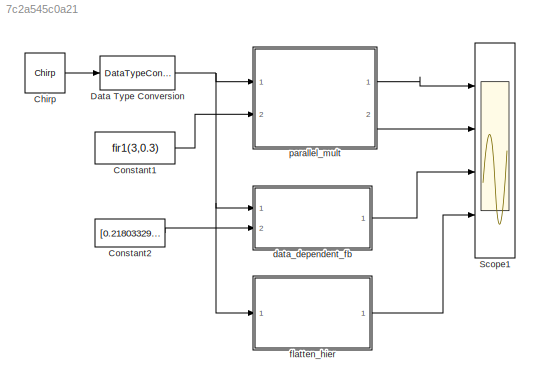
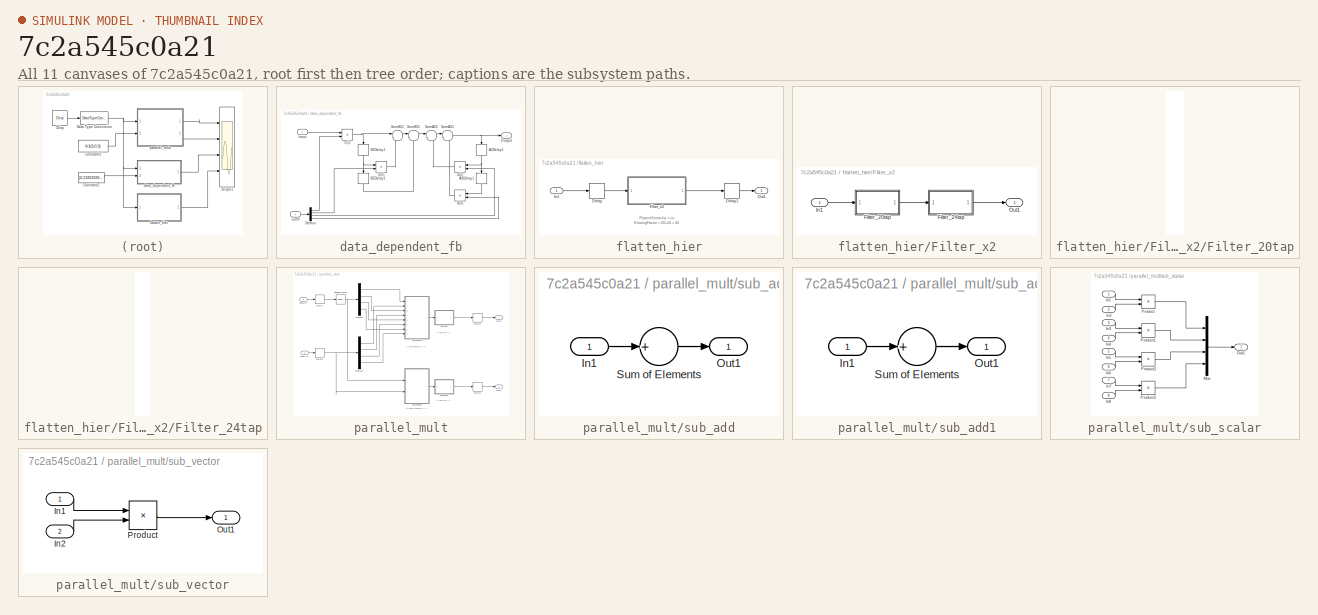
[diagram: thumbnail index - all 11 canvases of the model, root first then tree order]
MODEL slx_7c2a545c0a21
KIND model
CONFIG AbsTol = auto
CONFIG FixedStep = auto
CONFIG MaxStep = auto
CONFIG MinStep = auto
CONFIG RelTol = 1e-3
CONFIG SampleTimeConstraint = Unconstrained
CONFIG Solver = FixedStepDiscrete
CONFIG SolverMode = SingleTasking
CONFIG SolverName = FixedStepDiscrete
CONFIG StartTime = 0.0
CONFIG StopTime = 10
BLOCK [Reference] Chirp  REF=dspsrcs4/Chirp
  Ports = [0, 1]
  SourceBlock = dspsrcs4/Chirp
  SourceType = Chirp
BLOCK [Constant] Constant1
  OutDataTypeStr = fixdt(1,16,14)
  SampleTime = -1
  Value = fir1(3,0.3)
BLOCK [Constant] Constant2
  OutDataTypeStr = fixdt(1,16,14)
  SampleTime = -1
  Value = [0.21803329940859612 1.9992290087844786 -0.35132832804499714 0.32968925712488067]
BLOCK [DataTypeConversion] Data Type Conversion
  OutDataTypeStr = fixdt(1,16,14)
  RndMeth = Floor
  SaturateOnIntegerOverflow = off
BLOCK [Scope] Scope1
  NumInputPorts = 4
  Ports = [4]
  ScopeSpecificationString = Simulink.scopes.TimeScopeBlockCfg('CurrentConfiguration', extmgr.ConfigurationSet(extmgr.Configuration('Core','General UI',true),extmgr.Configuration('Core','Source UI',true),extmgr.Configuration('Sources','WiredSimulink',true,'DataLoggingVariableName','ScopeData1','DataLoggingSaveFormat','StructureWithTime','DataLoggingDecimation','1','DataLoggingDecimateData',true),extmgr.Configuration('Visuals'...<+3703ch>
BLOCK [SubSystem] data_dependent_fb
  ErrorFcn = dspFilterRealizedInBasicElemsAlgLoopErrFcnCallback
  Ports = [2, 1]
  RequestExecContextInheritance = off
  Tag = FilterWizardSubSystem
  UserDataPersistent = on
  Variant = off
BLOCK [Delay] data_dependent_fb/A2Delay1
  DelayLength = 1
  InitialCondition = 0
  InputPortMap = u0
  Ports = [1, 1]
BLOCK [Delay] data_dependent_fb/A3Delay1
  DelayLength = 1
  InitialCondition = 0
  InputPortMap = u0
  Ports = [1, 1]
BLOCK [Delay] data_dependent_fb/B2Delay1
  DelayLength = 1
  InitialCondition = 0
  InputPortMap = u0
  Ports = [1, 1]
BLOCK [Delay] data_dependent_fb/B3Delay1
  DelayLength = 1
  InitialCondition = 0
  InputPortMap = u0
  Ports = [1, 1]
BLOCK [Inport] data_dependent_fb/Coeff
  IconDisplay = Port number
  Port = 2
BLOCK [Demux] data_dependent_fb/Demux
  DisplayOption = bar
  Ports = [1, 4]
BLOCK [Inport] data_dependent_fb/Input
  IconDisplay = Port number
BLOCK [Outport] data_dependent_fb/Output
  IconDisplay = Port number
BLOCK [Sum] data_dependent_fb/SumA21
  IconShape = round
  InputSameDT = off
  Inputs = |+-
  Ports = [2, 1]
  RndMeth = Nearest
BLOCK [Sum] data_dependent_fb/SumA31
  IconShape = round
  InputSameDT = off
  Inputs = |+-
  Ports = [2, 1]
  RndMeth = Nearest
BLOCK [Sum] data_dependent_fb/SumB21
  IconShape = round
  InputSameDT = off
  Inputs = |++
  Ports = [2, 1]
  RndMeth = Nearest
BLOCK [Sum] data_dependent_fb/SumB31
  IconShape = round
  InputSameDT = off
  Inputs = |++
  Ports = [2, 1]
  RndMeth = Nearest
BLOCK [Product] data_dependent_fb/a(2)
  InputSameDT = off
  Ports = [2, 1]
  RndMeth = Nearest
  SaturateOnIntegerOverflow = off
BLOCK [Product] data_dependent_fb/a(3)
  InputSameDT = off
  Ports = [2, 1]
  RndMeth = Nearest
  SaturateOnIntegerOverflow = off
BLOCK [Product] data_dependent_fb/b(2)
  InputSameDT = off
  Ports = [2, 1]
  RndMeth = Nearest
  SaturateOnIntegerOverflow = off
BLOCK [Product] data_dependent_fb/s(1)
  InputSameDT = off
  Ports = [2, 1]
  RndMeth = Nearest
  SaturateOnIntegerOverflow = off
BLOCK [SubSystem] flatten_hier
  Ports = [1, 1]
  RequestExecContextInheritance = off
  Variant = off
BLOCK [Delay] flatten_hier/Delay
  DelayLength = 1
  InputPortMap = u0
  Ports = [1, 1]
BLOCK [Delay] flatten_hier/Delay1
  DelayLength = 1
  InputPortMap = u0
  Ports = [1, 1]
BLOCK [SubSystem] flatten_hier/Filter_x2
  Ports = [1, 1]
  RequestExecContextInheritance = off
  Variant = off
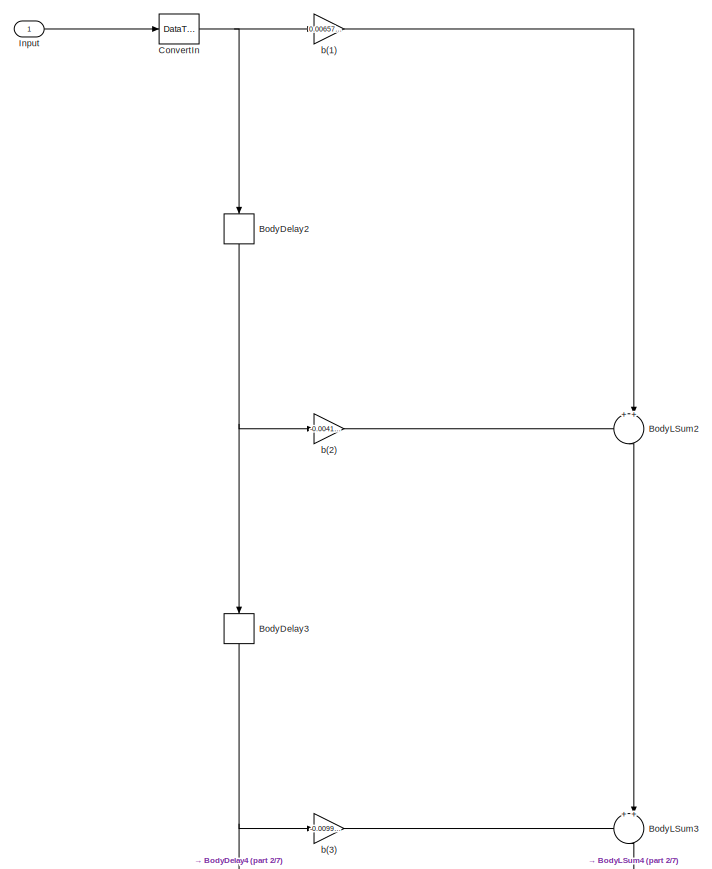
[diagram: flatten_hier/Filter_x2/Filter_20tap - part 1/7, full width, top band]
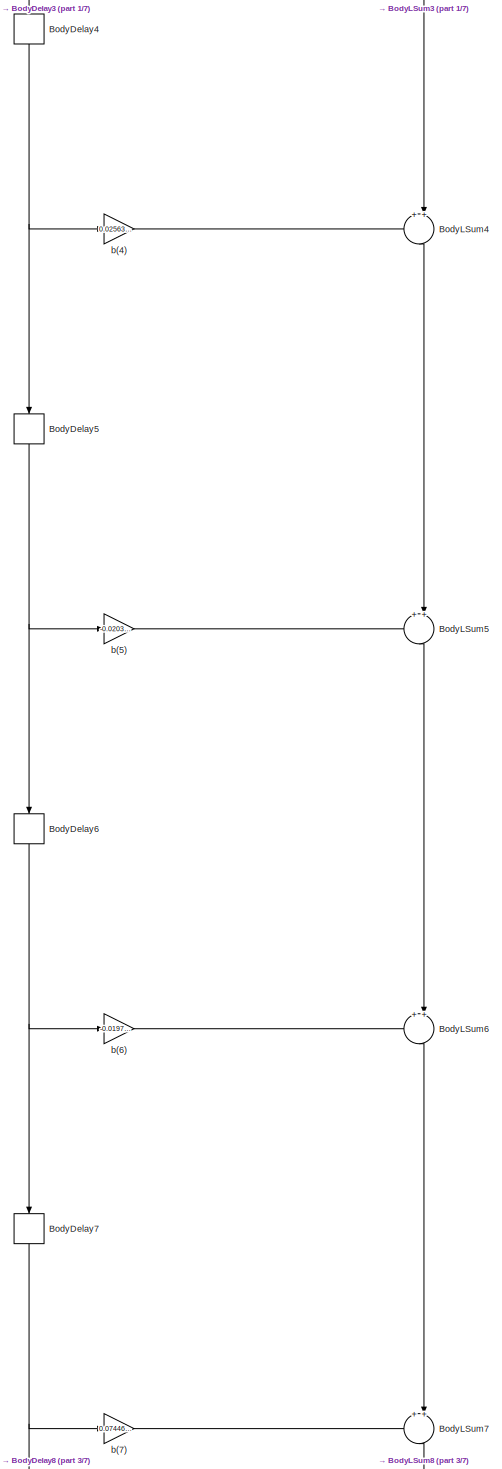
[diagram: flatten_hier/Filter_x2/Filter_20tap - part 2/7, top center region]
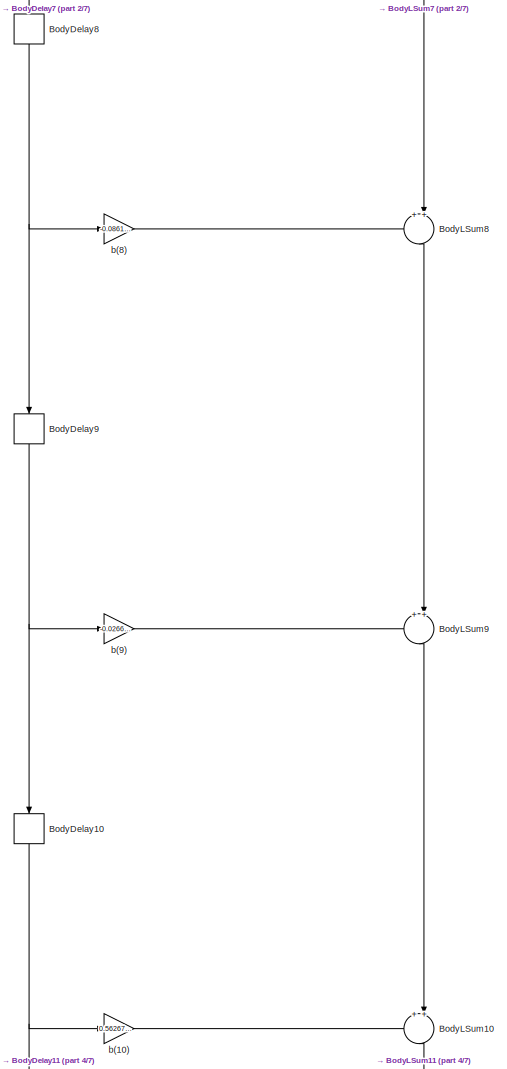
[diagram: flatten_hier/Filter_x2/Filter_20tap - part 3/7, central region]
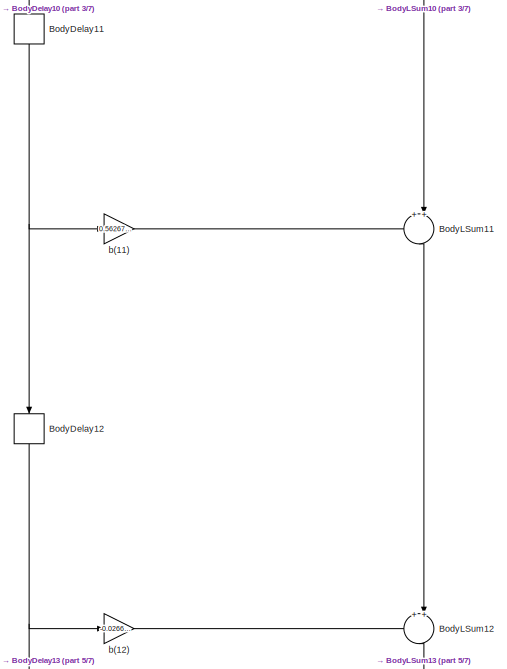
[diagram: flatten_hier/Filter_x2/Filter_20tap - part 4/7, central region]
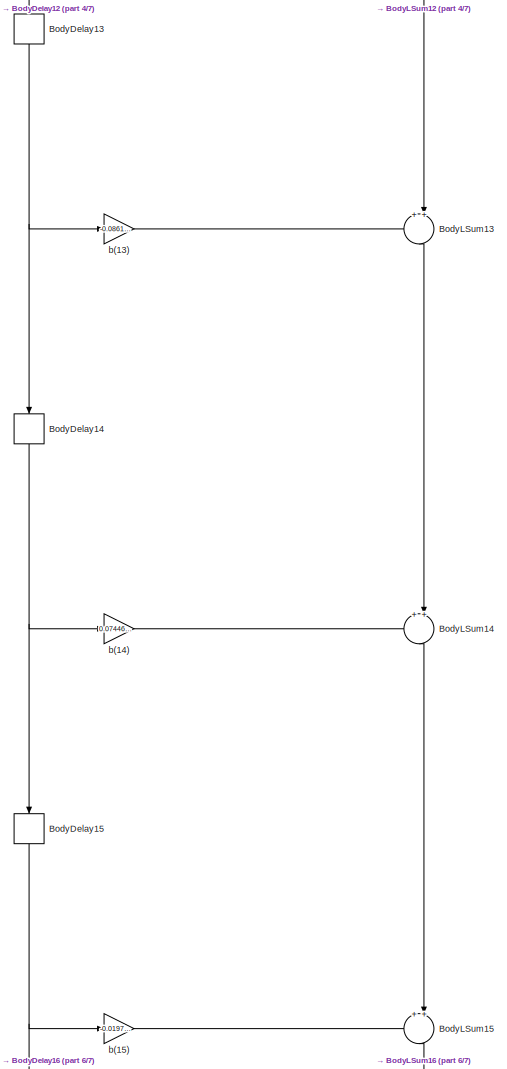
[diagram: flatten_hier/Filter_x2/Filter_20tap - part 5/7, bottom center region]
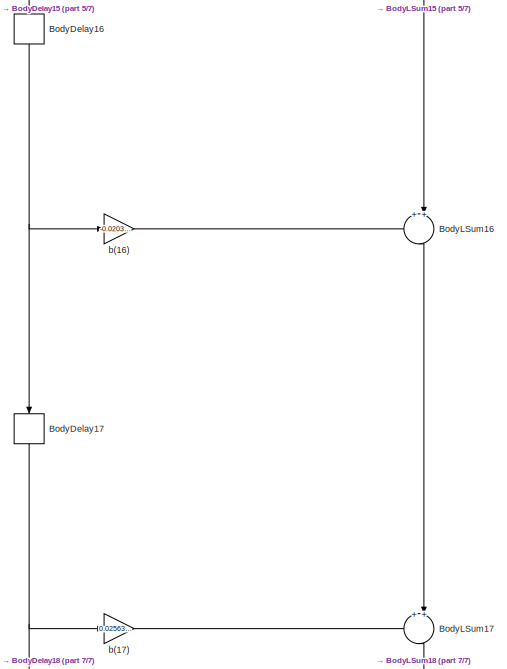
[diagram: flatten_hier/Filter_x2/Filter_20tap - part 6/7, bottom center region]
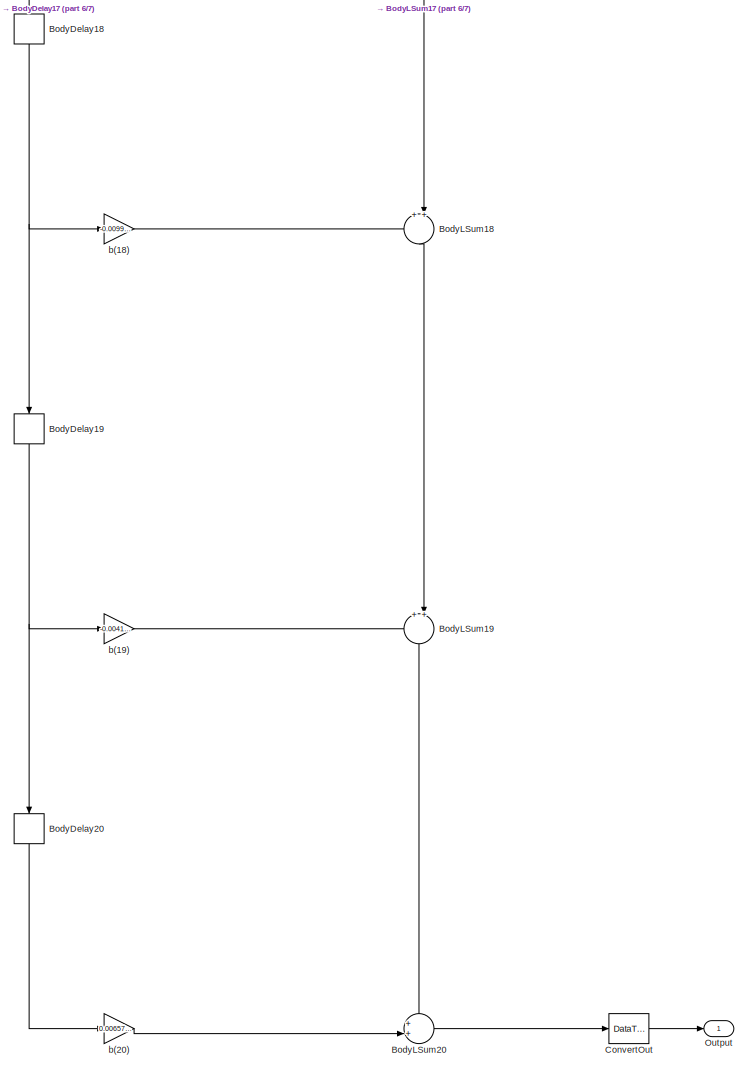
[diagram: flatten_hier/Filter_x2/Filter_20tap - part 7/7, full width, bottom band]
BLOCK [SubSystem] flatten_hier/Filter_x2/Filter_20tap
  ErrorFcn = dspFilterRealizedInBasicElemsAlgLoopErrFcnCallback
  Ports = [1, 1]
  RequestExecContextInheritance = off
  Tag = FilterWizardSubSystem
  UserDataPersistent = on
  Variant = off
BLOCK [Delay] flatten_hier/Filter_x2/Filter_20tap/BodyDelay10
  DelayLength = 1
  InitialCondition = 0
  InputPortMap = u0
  InputProcessing = Columns as channels (frame based)
  Ports = [1, 1]
BLOCK [Delay] flatten_hier/Filter_x2/Filter_20tap/BodyDelay11
  DelayLength = 1
  InitialCondition = 0
  InputPortMap = u0
  InputProcessing = Columns as channels (frame based)
  Ports = [1, 1]
BLOCK [Delay] flatten_hier/Filter_x2/Filter_20tap/BodyDelay12
  DelayLength = 1
  InitialCondition = 0
  InputPortMap = u0
  InputProcessing = Columns as channels (frame based)
  Ports = [1, 1]
BLOCK [Delay] flatten_hier/Filter_x2/Filter_20tap/BodyDelay13
  DelayLength = 1
  InitialCondition = 0
  InputPortMap = u0
  InputProcessing = Columns as channels (frame based)
  Ports = [1, 1]
BLOCK [Delay] flatten_hier/Filter_x2/Filter_20tap/BodyDelay14
  DelayLength = 1
  InitialCondition = 0
  InputPortMap = u0
  InputProcessing = Columns as channels (frame based)
  Ports = [1, 1]
BLOCK [Delay] flatten_hier/Filter_x2/Filter_20tap/BodyDelay15
  DelayLength = 1
  InitialCondition = 0
  InputPortMap = u0
  InputProcessing = Columns as channels (frame based)
  Ports = [1, 1]
BLOCK [Delay] flatten_hier/Filter_x2/Filter_20tap/BodyDelay16
  DelayLength = 1
  InitialCondition = 0
  InputPortMap = u0
  InputProcessing = Columns as channels (frame based)
  Ports = [1, 1]
BLOCK [Delay] flatten_hier/Filter_x2/Filter_20tap/BodyDelay17
  DelayLength = 1
  InitialCondition = 0
  InputPortMap = u0
  InputProcessing = Columns as channels (frame based)
  Ports = [1, 1]
BLOCK [Delay] flatten_hier/Filter_x2/Filter_20tap/BodyDelay18
  DelayLength = 1
  InitialCondition = 0
  InputPortMap = u0
  InputProcessing = Columns as channels (frame based)
  Ports = [1, 1]
BLOCK [Delay] flatten_hier/Filter_x2/Filter_20tap/BodyDelay19
  DelayLength = 1
  InitialCondition = 0
  InputPortMap = u0
  InputProcessing = Columns as channels (frame based)
  Ports = [1, 1]
BLOCK [Delay] flatten_hier/Filter_x2/Filter_20tap/BodyDelay2
  DelayLength = 1
  InitialCondition = 0
  InputPortMap = u0
  InputProcessing = Columns as channels (frame based)
  Ports = [1, 1]
BLOCK [Delay] flatten_hier/Filter_x2/Filter_20tap/BodyDelay20
  DelayLength = 1
  InitialCondition = 0
  InputPortMap = u0
  InputProcessing = Columns as channels (frame based)
  Ports = [1, 1]
BLOCK [Delay] flatten_hier/Filter_x2/Filter_20tap/BodyDelay3
  DelayLength = 1
  InitialCondition = 0
  InputPortMap = u0
  InputProcessing = Columns as channels (frame based)
  Ports = [1, 1]
BLOCK [Delay] flatten_hier/Filter_x2/Filter_20tap/BodyDelay4
  DelayLength = 1
  InitialCondition = 0
  InputPortMap = u0
  InputProcessing = Columns as channels (frame based)
  Ports = [1, 1]
BLOCK [Delay] flatten_hier/Filter_x2/Filter_20tap/BodyDelay5
  DelayLength = 1
  InitialCondition = 0
  InputPortMap = u0
  InputProcessing = Columns as channels (frame based)
  Ports = [1, 1]
BLOCK [Delay] flatten_hier/Filter_x2/Filter_20tap/BodyDelay6
  DelayLength = 1
  InitialCondition = 0
  InputPortMap = u0
  InputProcessing = Columns as channels (frame based)
  Ports = [1, 1]
BLOCK [Delay] flatten_hier/Filter_x2/Filter_20tap/BodyDelay7
  DelayLength = 1
  InitialCondition = 0
  InputPortMap = u0
  InputProcessing = Columns as channels (frame based)
  Ports = [1, 1]
BLOCK [Delay] flatten_hier/Filter_x2/Filter_20tap/BodyDelay8
  DelayLength = 1
  InitialCondition = 0
  InputPortMap = u0
  InputProcessing = Columns as channels (frame based)
  Ports = [1, 1]
BLOCK [Delay] flatten_hier/Filter_x2/Filter_20tap/BodyDelay9
  DelayLength = 1
  InitialCondition = 0
  InputPortMap = u0
  InputProcessing = Columns as channels (frame based)
  Ports = [1, 1]
BLOCK [Sum] flatten_hier/Filter_x2/Filter_20tap/BodyLSum10
  AccumDataTypeStr = fixdt(1,32,29)
  IconShape = round
  InputSameDT = off
  Inputs = ++|
  OutDataTypeStr = fixdt(1,32,29)
  Ports = [2, 1]
  RndMeth = Convergent
  SaturateOnIntegerOverflow = off
BLOCK [Sum] flatten_hier/Filter_x2/Filter_20tap/BodyLSum11
  AccumDataTypeStr = fixdt(1,32,29)
  IconShape = round
  InputSameDT = off
  Inputs = ++|
  OutDataTypeStr = fixdt(1,32,29)
  Ports = [2, 1]
  RndMeth = Convergent
  SaturateOnIntegerOverflow = off
BLOCK [Sum] flatten_hier/Filter_x2/Filter_20tap/BodyLSum12
  AccumDataTypeStr = fixdt(1,32,29)
  IconShape = round
  InputSameDT = off
  Inputs = ++|
  OutDataTypeStr = fixdt(1,32,29)
  Ports = [2, 1]
  RndMeth = Convergent
  SaturateOnIntegerOverflow = off
BLOCK [Sum] flatten_hier/Filter_x2/Filter_20tap/BodyLSum13
  AccumDataTypeStr = fixdt(1,32,29)
  IconShape = round
  InputSameDT = off
  Inputs = ++|
  OutDataTypeStr = fixdt(1,32,29)
  Ports = [2, 1]
  RndMeth = Convergent
  SaturateOnIntegerOverflow = off
BLOCK [Sum] flatten_hier/Filter_x2/Filter_20tap/BodyLSum14
  AccumDataTypeStr = fixdt(1,32,29)
  IconShape = round
  InputSameDT = off
  Inputs = ++|
  OutDataTypeStr = fixdt(1,32,29)
  Ports = [2, 1]
  RndMeth = Convergent
  SaturateOnIntegerOverflow = off
BLOCK [Sum] flatten_hier/Filter_x2/Filter_20tap/BodyLSum15
  AccumDataTypeStr = fixdt(1,32,29)
  IconShape = round
  InputSameDT = off
  Inputs = ++|
  OutDataTypeStr = fixdt(1,32,29)
  Ports = [2, 1]
  RndMeth = Convergent
  SaturateOnIntegerOverflow = off
BLOCK [Sum] flatten_hier/Filter_x2/Filter_20tap/BodyLSum16
  AccumDataTypeStr = fixdt(1,32,29)
  IconShape = round
  InputSameDT = off
  Inputs = ++|
  OutDataTypeStr = fixdt(1,32,29)
  Ports = [2, 1]
  RndMeth = Convergent
  SaturateOnIntegerOverflow = off
BLOCK [Sum] flatten_hier/Filter_x2/Filter_20tap/BodyLSum17
  AccumDataTypeStr = fixdt(1,32,29)
  IconShape = round
  InputSameDT = off
  Inputs = ++|
  OutDataTypeStr = fixdt(1,32,29)
  Ports = [2, 1]
  RndMeth = Convergent
  SaturateOnIntegerOverflow = off
BLOCK [Sum] flatten_hier/Filter_x2/Filter_20tap/BodyLSum18
  AccumDataTypeStr = fixdt(1,32,29)
  IconShape = round
  InputSameDT = off
  Inputs = ++|
  OutDataTypeStr = fixdt(1,32,29)
  Ports = [2, 1]
  RndMeth = Convergent
  SaturateOnIntegerOverflow = off
BLOCK [Sum] flatten_hier/Filter_x2/Filter_20tap/BodyLSum19
  AccumDataTypeStr = fixdt(1,32,29)
  IconShape = round
  InputSameDT = off
  Inputs = ++|
  OutDataTypeStr = fixdt(1,32,29)
  Ports = [2, 1]
  RndMeth = Convergent
  SaturateOnIntegerOverflow = off
BLOCK [Sum] flatten_hier/Filter_x2/Filter_20tap/BodyLSum2
  AccumDataTypeStr = fixdt(1,32,29)
  IconShape = round
  InputSameDT = off
  Inputs = ++|
  OutDataTypeStr = fixdt(1,32,29)
  Ports = [2, 1]
  RndMeth = Convergent
  SaturateOnIntegerOverflow = off
BLOCK [Sum] flatten_hier/Filter_x2/Filter_20tap/BodyLSum20
  AccumDataTypeStr = fixdt(1,32,29)
  IconShape = round
  InputSameDT = off
  Inputs = ++|
  OutDataTypeStr = fixdt(1,32,29)
  Ports = [2, 1]
  RndMeth = Convergent
  SaturateOnIntegerOverflow = off
BLOCK [Sum] flatten_hier/Filter_x2/Filter_20tap/BodyLSum3
  AccumDataTypeStr = fixdt(1,32,29)
  IconShape = round
  InputSameDT = off
  Inputs = ++|
  OutDataTypeStr = fixdt(1,32,29)
  Ports = [2, 1]
  RndMeth = Convergent
  SaturateOnIntegerOverflow = off
BLOCK [Sum] flatten_hier/Filter_x2/Filter_20tap/BodyLSum4
  AccumDataTypeStr = fixdt(1,32,29)
  IconShape = round
  InputSameDT = off
  Inputs = ++|
  OutDataTypeStr = fixdt(1,32,29)
  Ports = [2, 1]
  RndMeth = Convergent
  SaturateOnIntegerOverflow = off
BLOCK [Sum] flatten_hier/Filter_x2/Filter_20tap/BodyLSum5
  AccumDataTypeStr = fixdt(1,32,29)
  IconShape = round
  InputSameDT = off
  Inputs = ++|
  OutDataTypeStr = fixdt(1,32,29)
  Ports = [2, 1]
  RndMeth = Convergent
  SaturateOnIntegerOverflow = off
BLOCK [Sum] flatten_hier/Filter_x2/Filter_20tap/BodyLSum6
  AccumDataTypeStr = fixdt(1,32,29)
  IconShape = round
  InputSameDT = off
  Inputs = ++|
  OutDataTypeStr = fixdt(1,32,29)
  Ports = [2, 1]
  RndMeth = Convergent
  SaturateOnIntegerOverflow = off
BLOCK [Sum] flatten_hier/Filter_x2/Filter_20tap/BodyLSum7
  AccumDataTypeStr = fixdt(1,32,29)
  IconShape = round
  InputSameDT = off
  Inputs = ++|
  OutDataTypeStr = fixdt(1,32,29)
  Ports = [2, 1]
  RndMeth = Convergent
  SaturateOnIntegerOverflow = off
BLOCK [Sum] flatten_hier/Filter_x2/Filter_20tap/BodyLSum8
  AccumDataTypeStr = fixdt(1,32,29)
  IconShape = round
  InputSameDT = off
  Inputs = ++|
  OutDataTypeStr = fixdt(1,32,29)
  Ports = [2, 1]
  RndMeth = Convergent
  SaturateOnIntegerOverflow = off
BLOCK [Sum] flatten_hier/Filter_x2/Filter_20tap/BodyLSum9
  AccumDataTypeStr = fixdt(1,32,29)
  IconShape = round
  InputSameDT = off
  Inputs = ++|
  OutDataTypeStr = fixdt(1,32,29)
  Ports = [2, 1]
  RndMeth = Convergent
  SaturateOnIntegerOverflow = off
BLOCK [DataTypeConversion] flatten_hier/Filter_x2/Filter_20tap/ConvertIn
  OutDataTypeStr = fixdt(1,16,14)
  RndMeth = Nearest
BLOCK [DataTypeConversion] flatten_hier/Filter_x2/Filter_20tap/ConvertOut
  OutDataTypeStr = fixdt(1,32,29)
  RndMeth = Convergent
  SaturateOnIntegerOverflow = off
BLOCK [Inport] flatten_hier/Filter_x2/Filter_20tap/Input
  IconDisplay = Port number
BLOCK [Outport] flatten_hier/Filter_x2/Filter_20tap/Output
  IconDisplay = Port number
BLOCK [Gain] flatten_hier/Filter_x2/Filter_20tap/b(1)
  Gain = 0.0065785208536696949
  OutDataTypeStr = fixdt(1,31,29)
  ParamDataTypeStr = fixdt(1,16,15)
  RndMeth = Convergent
  SaturateOnIntegerOverflow = off
BLOCK [Gain] flatten_hier/Filter_x2/Filter_20tap/b(10)
  Gain = 0.56267500277478411
  OutDataTypeStr = fixdt(1,31,29)
  ParamDataTypeStr = fixdt(1,16,15)
  RndMeth = Convergent
  SaturateOnIntegerOverflow = off
BLOCK [Gain] flatten_hier/Filter_x2/Filter_20tap/b(11)
  Gain = 0.56267500277478411
  OutDataTypeStr = fixdt(1,31,29)
  ParamDataTypeStr = fixdt(1,16,15)
  RndMeth = Convergent
  SaturateOnIntegerOverflow = off
BLOCK [Gain] flatten_hier/Filter_x2/Filter_20tap/b(12)
  Gain = -0.026694515910884429
  OutDataTypeStr = fixdt(1,31,29)
  ParamDataTypeStr = fixdt(1,16,15)
  RndMeth = Convergent
  SaturateOnIntegerOverflow = off
BLOCK [Gain] flatten_hier/Filter_x2/Filter_20tap/b(13)
  Gain = -0.086100806895851215
  OutDataTypeStr = fixdt(1,31,29)
  ParamDataTypeStr = fixdt(1,16,15)
  RndMeth = Convergent
  SaturateOnIntegerOverflow = off
BLOCK [Gain] flatten_hier/Filter_x2/Filter_20tap/b(14)
  Gain = 0.074464270767581109
  OutDataTypeStr = fixdt(1,31,29)
  ParamDataTypeStr = fixdt(1,16,15)
  RndMeth = Convergent
  SaturateOnIntegerOverflow = off
BLOCK [Gain] flatten_hier/Filter_x2/Filter_20tap/b(15)
  Gain = -0.019747599656098552
  OutDataTypeStr = fixdt(1,31,29)
  ParamDataTypeStr = fixdt(1,16,15)
  RndMeth = Convergent
  SaturateOnIntegerOverflow = off
BLOCK [Gain] flatten_hier/Filter_x2/Filter_20tap/b(16)
  Gain = -0.020323357641311962
  OutDataTypeStr = fixdt(1,31,29)
  ParamDataTypeStr = fixdt(1,16,15)
  RndMeth = Convergent
  SaturateOnIntegerOverflow = off
BLOCK [Gain] flatten_hier/Filter_x2/Filter_20tap/b(17)
  Gain = 0.025637579992376872
  OutDataTypeStr = fixdt(1,31,29)
  ParamDataTypeStr = fixdt(1,16,15)
  RndMeth = Convergent
  SaturateOnIntegerOverflow = off
BLOCK [Gain] flatten_hier/Filter_x2/Filter_20tap/b(18)
  Gain = -0.0099032805450486195
  OutDataTypeStr = fixdt(1,31,29)
  ParamDataTypeStr = fixdt(1,16,15)
  RndMeth = Convergent
  SaturateOnIntegerOverflow = off
BLOCK [Gain] flatten_hier/Filter_x2/Filter_20tap/b(19)
  Gain = -0.0041930945382730499
  OutDataTypeStr = fixdt(1,31,29)
  ParamDataTypeStr = fixdt(1,16,15)
  RndMeth = Convergent
  SaturateOnIntegerOverflow = off
BLOCK [Gain] flatten_hier/Filter_x2/Filter_20tap/b(2)
  Gain = -0.0041930945382730499
  OutDataTypeStr = fixdt(1,31,29)
  ParamDataTypeStr = fixdt(1,16,15)
  RndMeth = Convergent
  SaturateOnIntegerOverflow = off
BLOCK [Gain] flatten_hier/Filter_x2/Filter_20tap/b(20)
  Gain = 0.0065785208536696949
  OutDataTypeStr = fixdt(1,31,29)
  ParamDataTypeStr = fixdt(1,16,15)
  RndMeth = Convergent
  SaturateOnIntegerOverflow = off
BLOCK [Gain] flatten_hier/Filter_x2/Filter_20tap/b(3)
  Gain = -0.0099032805450486195
  OutDataTypeStr = fixdt(1,31,29)
  ParamDataTypeStr = fixdt(1,16,15)
  RndMeth = Convergent
  SaturateOnIntegerOverflow = off
BLOCK [Gain] flatten_hier/Filter_x2/Filter_20tap/b(4)
  Gain = 0.025637579992376872
  OutDataTypeStr = fixdt(1,31,29)
  ParamDataTypeStr = fixdt(1,16,15)
  RndMeth = Convergent
  SaturateOnIntegerOverflow = off
BLOCK [Gain] flatten_hier/Filter_x2/Filter_20tap/b(5)
  Gain = -0.020323357641311962
  OutDataTypeStr = fixdt(1,31,29)
  ParamDataTypeStr = fixdt(1,16,15)
  RndMeth = Convergent
  SaturateOnIntegerOverflow = off
BLOCK [Gain] flatten_hier/Filter_x2/Filter_20tap/b(6)
  Gain = -0.019747599656098552
  OutDataTypeStr = fixdt(1,31,29)
  ParamDataTypeStr = fixdt(1,16,15)
  RndMeth = Convergent
  SaturateOnIntegerOverflow = off
BLOCK [Gain] flatten_hier/Filter_x2/Filter_20tap/b(7)
  Gain = 0.074464270767581109
  OutDataTypeStr = fixdt(1,31,29)
  ParamDataTypeStr = fixdt(1,16,15)
  RndMeth = Convergent
  SaturateOnIntegerOverflow = off
BLOCK [Gain] flatten_hier/Filter_x2/Filter_20tap/b(8)
  Gain = -0.086100806895851215
  OutDataTypeStr = fixdt(1,31,29)
  ParamDataTypeStr = fixdt(1,16,15)
  RndMeth = Convergent
  SaturateOnIntegerOverflow = off
BLOCK [Gain] flatten_hier/Filter_x2/Filter_20tap/b(9)
  Gain = -0.026694515910884429
  OutDataTypeStr = fixdt(1,31,29)
  ParamDataTypeStr = fixdt(1,16,15)
  RndMeth = Convergent
  SaturateOnIntegerOverflow = off
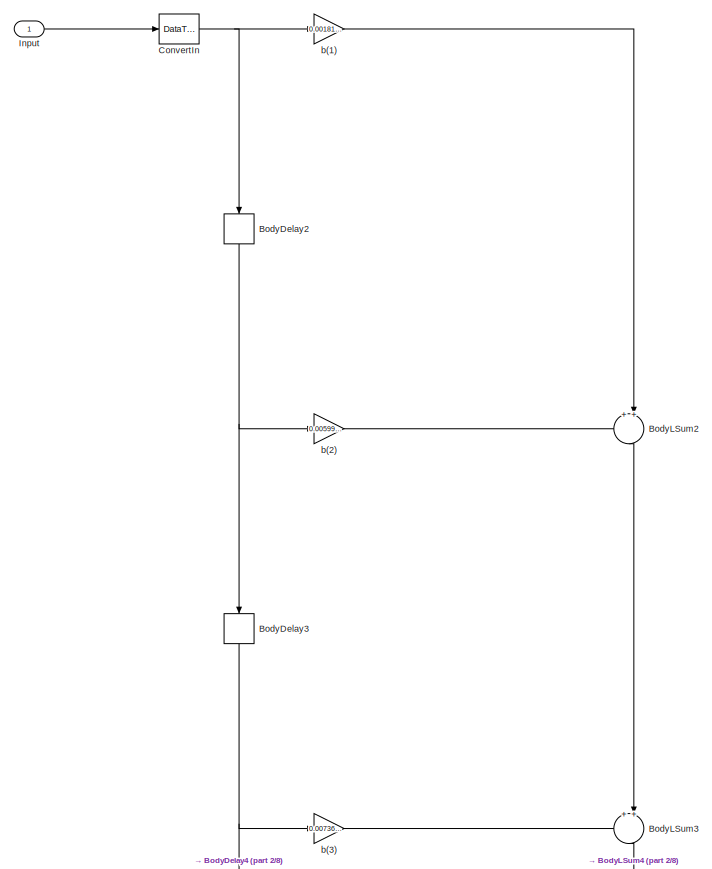
[diagram: flatten_hier/Filter_x2/Filter_24tap - part 1/8, full width, top band]
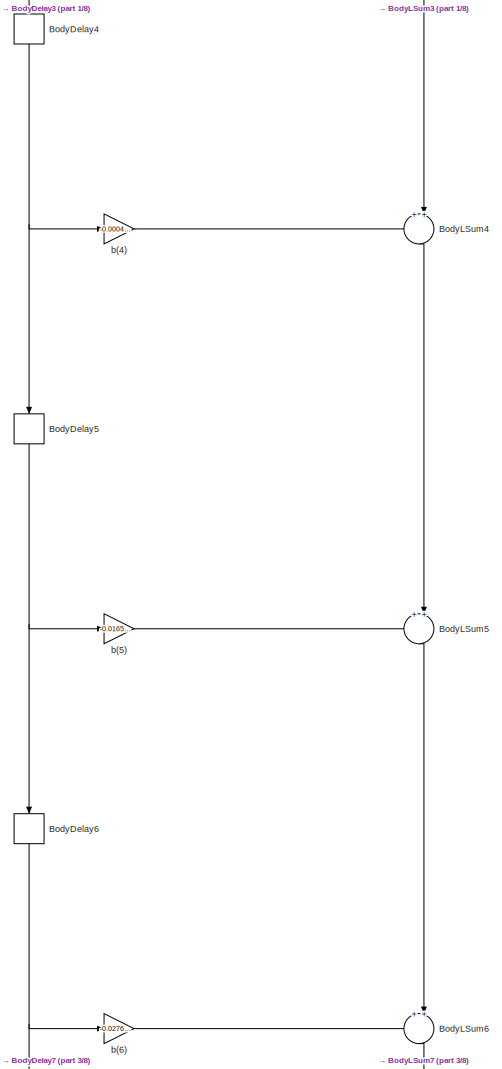
[diagram: flatten_hier/Filter_x2/Filter_24tap - part 2/8, top center region]
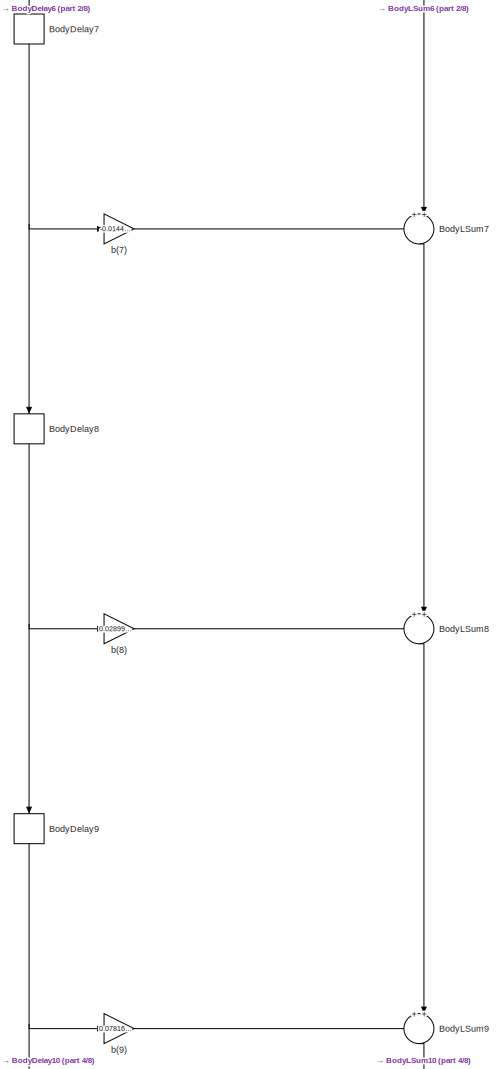
[diagram: flatten_hier/Filter_x2/Filter_24tap - part 3/8, top center region]
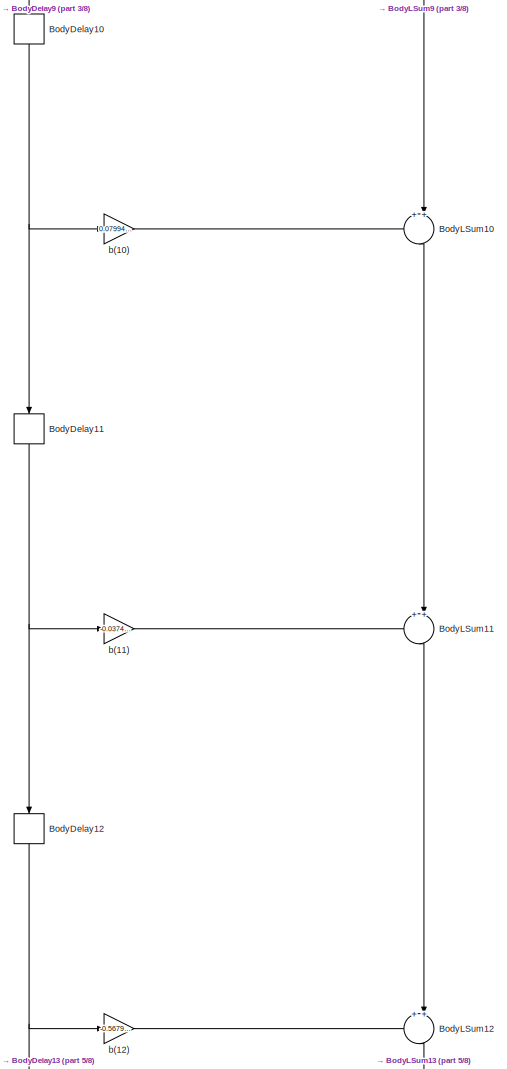
[diagram: flatten_hier/Filter_x2/Filter_24tap - part 4/8, central region]
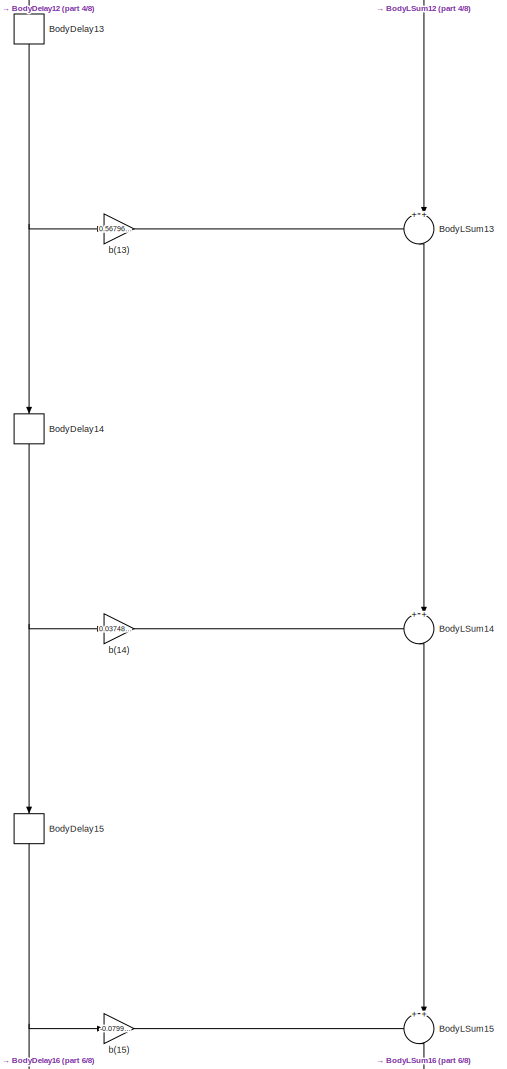
[diagram: flatten_hier/Filter_x2/Filter_24tap - part 5/8, central region]
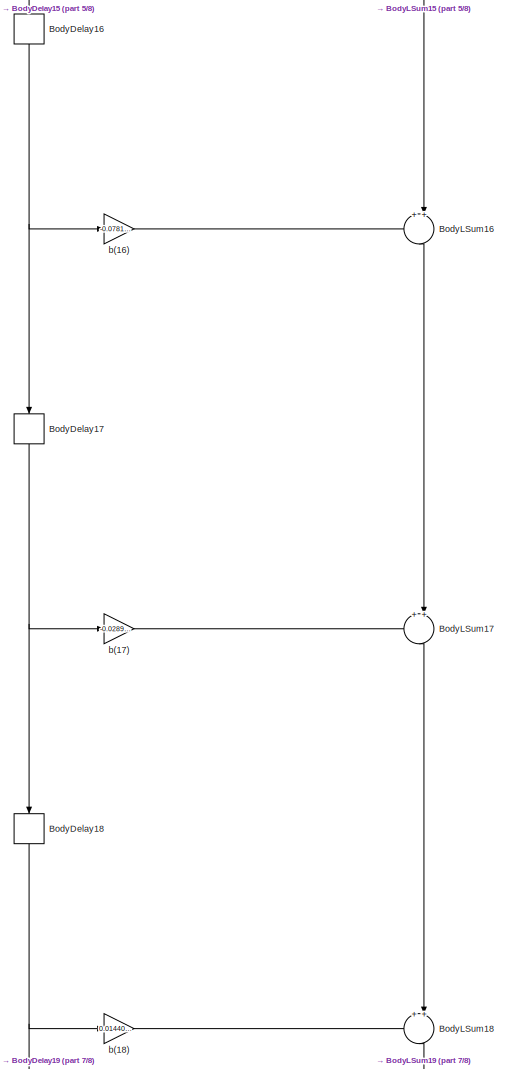
[diagram: flatten_hier/Filter_x2/Filter_24tap - part 6/8, bottom center region]
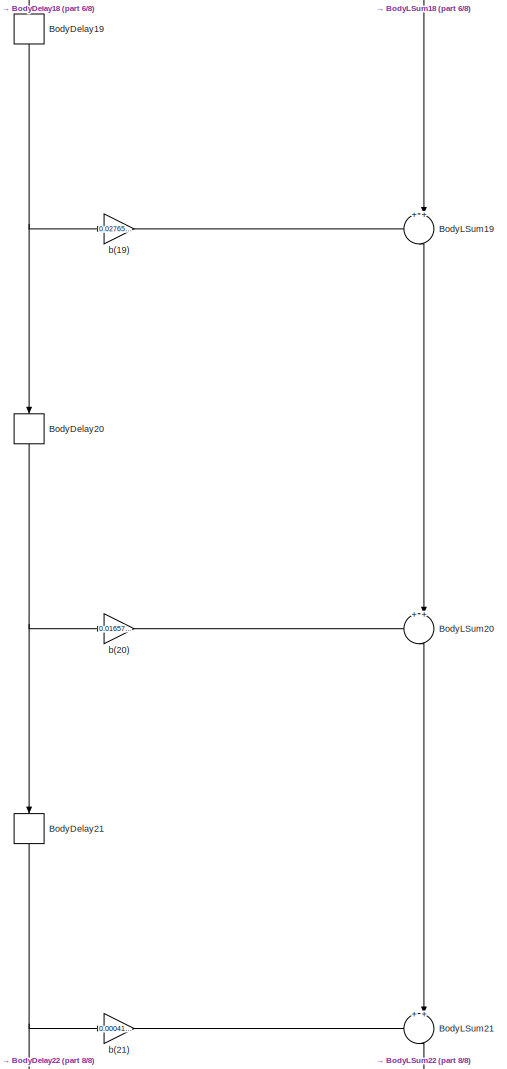
[diagram: flatten_hier/Filter_x2/Filter_24tap - part 7/8, bottom center region]
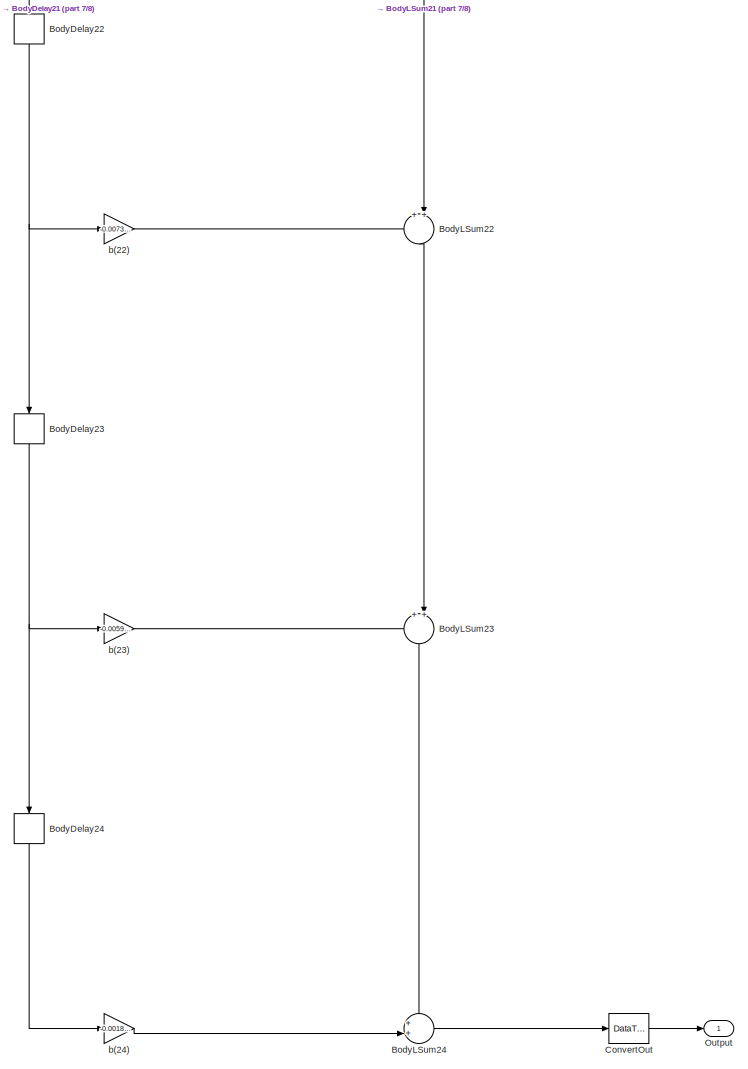
[diagram: flatten_hier/Filter_x2/Filter_24tap - part 8/8, full width, bottom band]
BLOCK [SubSystem] flatten_hier/Filter_x2/Filter_24tap
  ErrorFcn = dspFilterRealizedInBasicElemsAlgLoopErrFcnCallback
  Ports = [1, 1]
  RequestExecContextInheritance = off
  Tag = FilterWizardSubSystem
  UserDataPersistent = on
  Variant = off
BLOCK [Delay] flatten_hier/Filter_x2/Filter_24tap/BodyDelay10
  DelayLength = 1
  InitialCondition = 0
  InputPortMap = u0
  InputProcessing = Columns as channels (frame based)
  Ports = [1, 1]
BLOCK [Delay] flatten_hier/Filter_x2/Filter_24tap/BodyDelay11
  DelayLength = 1
  InitialCondition = 0
  InputPortMap = u0
  InputProcessing = Columns as channels (frame based)
  Ports = [1, 1]
BLOCK [Delay] flatten_hier/Filter_x2/Filter_24tap/BodyDelay12
  DelayLength = 1
  InitialCondition = 0
  InputPortMap = u0
  InputProcessing = Columns as channels (frame based)
  Ports = [1, 1]
BLOCK [Delay] flatten_hier/Filter_x2/Filter_24tap/BodyDelay13
  DelayLength = 1
  InitialCondition = 0
  InputPortMap = u0
  InputProcessing = Columns as channels (frame based)
  Ports = [1, 1]
BLOCK [Delay] flatten_hier/Filter_x2/Filter_24tap/BodyDelay14
  DelayLength = 1
  InitialCondition = 0
  InputPortMap = u0
  InputProcessing = Columns as channels (frame based)
  Ports = [1, 1]
BLOCK [Delay] flatten_hier/Filter_x2/Filter_24tap/BodyDelay15
  DelayLength = 1
  InitialCondition = 0
  InputPortMap = u0
  InputProcessing = Columns as channels (frame based)
  Ports = [1, 1]
BLOCK [Delay] flatten_hier/Filter_x2/Filter_24tap/BodyDelay16
  DelayLength = 1
  InitialCondition = 0
  InputPortMap = u0
  InputProcessing = Columns as channels (frame based)
  Ports = [1, 1]
BLOCK [Delay] flatten_hier/Filter_x2/Filter_24tap/BodyDelay17
  DelayLength = 1
  InitialCondition = 0
  InputPortMap = u0
  InputProcessing = Columns as channels (frame based)
  Ports = [1, 1]
BLOCK [Delay] flatten_hier/Filter_x2/Filter_24tap/BodyDelay18
  DelayLength = 1
  InitialCondition = 0
  InputPortMap = u0
  InputProcessing = Columns as channels (frame based)
  Ports = [1, 1]
BLOCK [Delay] flatten_hier/Filter_x2/Filter_24tap/BodyDelay19
  DelayLength = 1
  InitialCondition = 0
  InputPortMap = u0
  InputProcessing = Columns as channels (frame based)
  Ports = [1, 1]
BLOCK [Delay] flatten_hier/Filter_x2/Filter_24tap/BodyDelay2
  DelayLength = 1
  InitialCondition = 0
  InputPortMap = u0
  InputProcessing = Columns as channels (frame based)
  Ports = [1, 1]
BLOCK [Delay] flatten_hier/Filter_x2/Filter_24tap/BodyDelay20
  DelayLength = 1
  InitialCondition = 0
  InputPortMap = u0
  InputProcessing = Columns as channels (frame based)
  Ports = [1, 1]
BLOCK [Delay] flatten_hier/Filter_x2/Filter_24tap/BodyDelay21
  DelayLength = 1
  InitialCondition = 0
  InputPortMap = u0
  InputProcessing = Columns as channels (frame based)
  Ports = [1, 1]
BLOCK [Delay] flatten_hier/Filter_x2/Filter_24tap/BodyDelay22
  DelayLength = 1
  InitialCondition = 0
  InputPortMap = u0
  InputProcessing = Columns as channels (frame based)
  Ports = [1, 1]
BLOCK [Delay] flatten_hier/Filter_x2/Filter_24tap/BodyDelay23
  DelayLength = 1
  InitialCondition = 0
  InputPortMap = u0
  InputProcessing = Columns as channels (frame based)
  Ports = [1, 1]
BLOCK [Delay] flatten_hier/Filter_x2/Filter_24tap/BodyDelay24
  DelayLength = 1
  InitialCondition = 0
  InputPortMap = u0
  InputProcessing = Columns as channels (frame based)
  Ports = [1, 1]
BLOCK [Delay] flatten_hier/Filter_x2/Filter_24tap/BodyDelay3
  DelayLength = 1
  InitialCondition = 0
  InputPortMap = u0
  InputProcessing = Columns as channels (frame based)
  Ports = [1, 1]
BLOCK [Delay] flatten_hier/Filter_x2/Filter_24tap/BodyDelay4
  DelayLength = 1
  InitialCondition = 0
  InputPortMap = u0
  InputProcessing = Columns as channels (frame based)
  Ports = [1, 1]
BLOCK [Delay] flatten_hier/Filter_x2/Filter_24tap/BodyDelay5
  DelayLength = 1
  InitialCondition = 0
  InputPortMap = u0
  InputProcessing = Columns as channels (frame based)
  Ports = [1, 1]
BLOCK [Delay] flatten_hier/Filter_x2/Filter_24tap/BodyDelay6
  DelayLength = 1
  InitialCondition = 0
  InputPortMap = u0
  InputProcessing = Columns as channels (frame based)
  Ports = [1, 1]
BLOCK [Delay] flatten_hier/Filter_x2/Filter_24tap/BodyDelay7
  DelayLength = 1
  InitialCondition = 0
  InputPortMap = u0
  InputProcessing = Columns as channels (frame based)
  Ports = [1, 1]
BLOCK [Delay] flatten_hier/Filter_x2/Filter_24tap/BodyDelay8
  DelayLength = 1
  InitialCondition = 0
  InputPortMap = u0
  InputProcessing = Columns as channels (frame based)
  Ports = [1, 1]
BLOCK [Delay] flatten_hier/Filter_x2/Filter_24tap/BodyDelay9
  DelayLength = 1
  InitialCondition = 0
  InputPortMap = u0
  InputProcessing = Columns as channels (frame based)
  Ports = [1, 1]
BLOCK [Sum] flatten_hier/Filter_x2/Filter_24tap/BodyLSum10
  AccumDataTypeStr = fixdt(1,32,29)
  IconShape = round
  InputSameDT = off
  Inputs = ++|
  OutDataTypeStr = fixdt(1,32,29)
  Ports = [2, 1]
  RndMeth = Convergent
  SaturateOnIntegerOverflow = off
BLOCK [Sum] flatten_hier/Filter_x2/Filter_24tap/BodyLSum11
  AccumDataTypeStr = fixdt(1,32,29)
  IconShape = round
  InputSameDT = off
  Inputs = ++|
  OutDataTypeStr = fixdt(1,32,29)
  Ports = [2, 1]
  RndMeth = Convergent
  SaturateOnIntegerOverflow = off
BLOCK [Sum] flatten_hier/Filter_x2/Filter_24tap/BodyLSum12
  AccumDataTypeStr = fixdt(1,32,29)
  IconShape = round
  InputSameDT = off
  Inputs = ++|
  OutDataTypeStr = fixdt(1,32,29)
  Ports = [2, 1]
  RndMeth = Convergent
  SaturateOnIntegerOverflow = off
BLOCK [Sum] flatten_hier/Filter_x2/Filter_24tap/BodyLSum13
  AccumDataTypeStr = fixdt(1,32,29)
  IconShape = round
  InputSameDT = off
  Inputs = ++|
  OutDataTypeStr = fixdt(1,32,29)
  Ports = [2, 1]
  RndMeth = Convergent
  SaturateOnIntegerOverflow = off
BLOCK [Sum] flatten_hier/Filter_x2/Filter_24tap/BodyLSum14
  AccumDataTypeStr = fixdt(1,32,29)
  IconShape = round
  InputSameDT = off
  Inputs = ++|
  OutDataTypeStr = fixdt(1,32,29)
  Ports = [2, 1]
  RndMeth = Convergent
  SaturateOnIntegerOverflow = off
BLOCK [Sum] flatten_hier/Filter_x2/Filter_24tap/BodyLSum15
  AccumDataTypeStr = fixdt(1,32,29)
  IconShape = round
  InputSameDT = off
  Inputs = ++|
  OutDataTypeStr = fixdt(1,32,29)
  Ports = [2, 1]
  RndMeth = Convergent
  SaturateOnIntegerOverflow = off
BLOCK [Sum] flatten_hier/Filter_x2/Filter_24tap/BodyLSum16
  AccumDataTypeStr = fixdt(1,32,29)
  IconShape = round
  InputSameDT = off
  Inputs = ++|
  OutDataTypeStr = fixdt(1,32,29)
  Ports = [2, 1]
  RndMeth = Convergent
  SaturateOnIntegerOverflow = off
BLOCK [Sum] flatten_hier/Filter_x2/Filter_24tap/BodyLSum17
  AccumDataTypeStr = fixdt(1,32,29)
  IconShape = round
  InputSameDT = off
  Inputs = ++|
  OutDataTypeStr = fixdt(1,32,29)
  Ports = [2, 1]
  RndMeth = Convergent
  SaturateOnIntegerOverflow = off
BLOCK [Sum] flatten_hier/Filter_x2/Filter_24tap/BodyLSum18
  AccumDataTypeStr = fixdt(1,32,29)
  IconShape = round
  InputSameDT = off
  Inputs = ++|
  OutDataTypeStr = fixdt(1,32,29)
  Ports = [2, 1]
  RndMeth = Convergent
  SaturateOnIntegerOverflow = off
BLOCK [Sum] flatten_hier/Filter_x2/Filter_24tap/BodyLSum19
  AccumDataTypeStr = fixdt(1,32,29)
  IconShape = round
  InputSameDT = off
  Inputs = ++|
  OutDataTypeStr = fixdt(1,32,29)
  Ports = [2, 1]
  RndMeth = Convergent
  SaturateOnIntegerOverflow = off
BLOCK [Sum] flatten_hier/Filter_x2/Filter_24tap/BodyLSum2
  AccumDataTypeStr = fixdt(1,32,29)
  IconShape = round
  InputSameDT = off
  Inputs = ++|
  OutDataTypeStr = fixdt(1,32,29)
  Ports = [2, 1]
  RndMeth = Convergent
  SaturateOnIntegerOverflow = off
BLOCK [Sum] flatten_hier/Filter_x2/Filter_24tap/BodyLSum20
  AccumDataTypeStr = fixdt(1,32,29)
  IconShape = round
  InputSameDT = off
  Inputs = ++|
  OutDataTypeStr = fixdt(1,32,29)
  Ports = [2, 1]
  RndMeth = Convergent
  SaturateOnIntegerOverflow = off
BLOCK [Sum] flatten_hier/Filter_x2/Filter_24tap/BodyLSum21
  AccumDataTypeStr = fixdt(1,32,29)
  IconShape = round
  InputSameDT = off
  Inputs = ++|
  OutDataTypeStr = fixdt(1,32,29)
  Ports = [2, 1]
  RndMeth = Convergent
  SaturateOnIntegerOverflow = off
BLOCK [Sum] flatten_hier/Filter_x2/Filter_24tap/BodyLSum22
  AccumDataTypeStr = fixdt(1,32,29)
  IconShape = round
  InputSameDT = off
  Inputs = ++|
  OutDataTypeStr = fixdt(1,32,29)
  Ports = [2, 1]
  RndMeth = Convergent
  SaturateOnIntegerOverflow = off
BLOCK [Sum] flatten_hier/Filter_x2/Filter_24tap/BodyLSum23
  AccumDataTypeStr = fixdt(1,32,29)
  IconShape = round
  InputSameDT = off
  Inputs = ++|
  OutDataTypeStr = fixdt(1,32,29)
  Ports = [2, 1]
  RndMeth = Convergent
  SaturateOnIntegerOverflow = off
BLOCK [Sum] flatten_hier/Filter_x2/Filter_24tap/BodyLSum24
  AccumDataTypeStr = fixdt(1,32,29)
  IconShape = round
  InputSameDT = off
  Inputs = ++|
  OutDataTypeStr = fixdt(1,32,29)
  Ports = [2, 1]
  RndMeth = Convergent
  SaturateOnIntegerOverflow = off
BLOCK [Sum] flatten_hier/Filter_x2/Filter_24tap/BodyLSum3
  AccumDataTypeStr = fixdt(1,32,29)
  IconShape = round
  InputSameDT = off
  Inputs = ++|
  OutDataTypeStr = fixdt(1,32,29)
  Ports = [2, 1]
  RndMeth = Convergent
  SaturateOnIntegerOverflow = off
BLOCK [Sum] flatten_hier/Filter_x2/Filter_24tap/BodyLSum4
  AccumDataTypeStr = fixdt(1,32,29)
  IconShape = round
  InputSameDT = off
  Inputs = ++|
  OutDataTypeStr = fixdt(1,32,29)
  Ports = [2, 1]
  RndMeth = Convergent
  SaturateOnIntegerOverflow = off
BLOCK [Sum] flatten_hier/Filter_x2/Filter_24tap/BodyLSum5
  AccumDataTypeStr = fixdt(1,32,29)
  IconShape = round
  InputSameDT = off
  Inputs = ++|
  OutDataTypeStr = fixdt(1,32,29)
  Ports = [2, 1]
  RndMeth = Convergent
  SaturateOnIntegerOverflow = off
BLOCK [Sum] flatten_hier/Filter_x2/Filter_24tap/BodyLSum6
  AccumDataTypeStr = fixdt(1,32,29)
  IconShape = round
  InputSameDT = off
  Inputs = ++|
  OutDataTypeStr = fixdt(1,32,29)
  Ports = [2, 1]
  RndMeth = Convergent
  SaturateOnIntegerOverflow = off
BLOCK [Sum] flatten_hier/Filter_x2/Filter_24tap/BodyLSum7
  AccumDataTypeStr = fixdt(1,32,29)
  IconShape = round
  InputSameDT = off
  Inputs = ++|
  OutDataTypeStr = fixdt(1,32,29)
  Ports = [2, 1]
  RndMeth = Convergent
  SaturateOnIntegerOverflow = off
BLOCK [Sum] flatten_hier/Filter_x2/Filter_24tap/BodyLSum8
  AccumDataTypeStr = fixdt(1,32,29)
  IconShape = round
  InputSameDT = off
  Inputs = ++|
  OutDataTypeStr = fixdt(1,32,29)
  Ports = [2, 1]
  RndMeth = Convergent
  SaturateOnIntegerOverflow = off
BLOCK [Sum] flatten_hier/Filter_x2/Filter_24tap/BodyLSum9
  AccumDataTypeStr = fixdt(1,32,29)
  IconShape = round
  InputSameDT = off
  Inputs = ++|
  OutDataTypeStr = fixdt(1,32,29)
  Ports = [2, 1]
  RndMeth = Convergent
  SaturateOnIntegerOverflow = off
BLOCK [DataTypeConversion] flatten_hier/Filter_x2/Filter_24tap/ConvertIn
  OutDataTypeStr = fixdt(1,16,14)
  RndMeth = Nearest
BLOCK [DataTypeConversion] flatten_hier/Filter_x2/Filter_24tap/ConvertOut
  OutDataTypeStr = fixdt(1,32,29)
  RndMeth = Convergent
  SaturateOnIntegerOverflow = off
BLOCK [Inport] flatten_hier/Filter_x2/Filter_24tap/Input
  IconDisplay = Port number
BLOCK [Outport] flatten_hier/Filter_x2/Filter_24tap/Output
  IconDisplay = Port number
BLOCK [Gain] flatten_hier/Filter_x2/Filter_24tap/b(1)
  Gain = 0.0018103514622790915
  OutDataTypeStr = fixdt(1,31,29)
  ParamDataTypeStr = fixdt(1,16,15)
  RndMeth = Convergent
  SaturateOnIntegerOverflow = off
BLOCK [Gain] flatten_hier/Filter_x2/Filter_24tap/b(10)
  Gain = 0.079943707372564038
  OutDataTypeStr = fixdt(1,31,29)
  ParamDataTypeStr = fixdt(1,16,15)
  RndMeth = Convergent
  SaturateOnIntegerOverflow = off
BLOCK [Gain] flatten_hier/Filter_x2/Filter_24tap/b(11)
  Gain = -0.037485856914524718
  OutDataTypeStr = fixdt(1,31,29)
  ParamDataTypeStr = fixdt(1,16,15)
  RndMeth = Convergent
  SaturateOnIntegerOverflow = off
BLOCK [Gain] flatten_hier/Filter_x2/Filter_24tap/b(12)
  Gain = -0.5679645609678502
  OutDataTypeStr = fixdt(1,31,29)
  ParamDataTypeStr = fixdt(1,16,15)
  RndMeth = Convergent
  SaturateOnIntegerOverflow = off
BLOCK [Gain] flatten_hier/Filter_x2/Filter_24tap/b(13)
  Gain = 0.5679645609678502
  OutDataTypeStr = fixdt(1,31,29)
  ParamDataTypeStr = fixdt(1,16,15)
  RndMeth = Convergent
  SaturateOnIntegerOverflow = off
BLOCK [Gain] flatten_hier/Filter_x2/Filter_24tap/b(14)
  Gain = 0.037485856914524718
  OutDataTypeStr = fixdt(1,31,29)
  ParamDataTypeStr = fixdt(1,16,15)
  RndMeth = Convergent
  SaturateOnIntegerOverflow = off
BLOCK [Gain] flatten_hier/Filter_x2/Filter_24tap/b(15)
  Gain = -0.079943707372564038
  OutDataTypeStr = fixdt(1,31,29)
  ParamDataTypeStr = fixdt(1,16,15)
  RndMeth = Convergent
  SaturateOnIntegerOverflow = off
BLOCK [Gain] flatten_hier/Filter_x2/Filter_24tap/b(16)
  Gain = -0.078165912358661299
  OutDataTypeStr = fixdt(1,31,29)
  ParamDataTypeStr = fixdt(1,16,15)
  RndMeth = Convergent
  SaturateOnIntegerOverflow = off
BLOCK [Gain] flatten_hier/Filter_x2/Filter_24tap/b(17)
  Gain = -0.028992378701570964
  OutDataTypeStr = fixdt(1,31,29)
  ParamDataTypeStr = fixdt(1,16,15)
  RndMeth = Convergent
  SaturateOnIntegerOverflow = off
BLOCK [Gain] flatten_hier/Filter_x2/Filter_24tap/b(18)
  Gain = 0.014408312807099323
  OutDataTypeStr = fixdt(1,31,29)
  ParamDataTypeStr = fixdt(1,16,15)
  RndMeth = Convergent
  SaturateOnIntegerOverflow = off
BLOCK [Gain] flatten_hier/Filter_x2/Filter_24tap/b(19)
  Gain = 0.027651241372913749
  OutDataTypeStr = fixdt(1,31,29)
  ParamDataTypeStr = fixdt(1,16,15)
  RndMeth = Convergent
  SaturateOnIntegerOverflow = off
BLOCK [Gain] flatten_hier/Filter_x2/Filter_24tap/b(2)
  Gain = 0.0059988467486783506
  OutDataTypeStr = fixdt(1,31,29)
  ParamDataTypeStr = fixdt(1,16,15)
  RndMeth = Convergent
  SaturateOnIntegerOverflow = off
BLOCK [Gain] flatten_hier/Filter_x2/Filter_24tap/b(20)
  Gain = 0.016573395978042922
  OutDataTypeStr = fixdt(1,31,29)
  ParamDataTypeStr = fixdt(1,16,15)
  RndMeth = Convergent
  SaturateOnIntegerOverflow = off
BLOCK [Gain] flatten_hier/Filter_x2/Filter_24tap/b(21)
  Gain = 0.00041059803043431921
  OutDataTypeStr = fixdt(1,31,29)
  ParamDataTypeStr = fixdt(1,16,15)
  RndMeth = Convergent
  SaturateOnIntegerOverflow = off
BLOCK [Gain] flatten_hier/Filter_x2/Filter_24tap/b(22)
  Gain = -0.0073601585678137972
  OutDataTypeStr = fixdt(1,31,29)
  ParamDataTypeStr = fixdt(1,16,15)
  RndMeth = Convergent
  SaturateOnIntegerOverflow = off
BLOCK [Gain] flatten_hier/Filter_x2/Filter_24tap/b(23)
  Gain = -0.0059988467486783506
  OutDataTypeStr = fixdt(1,31,29)
  ParamDataTypeStr = fixdt(1,16,15)
  RndMeth = Convergent
  SaturateOnIntegerOverflow = off
BLOCK [Gain] flatten_hier/Filter_x2/Filter_24tap/b(24)
  Gain = -0.0018103514622790915
  OutDataTypeStr = fixdt(1,31,29)
  ParamDataTypeStr = fixdt(1,16,15)
  RndMeth = Convergent
  SaturateOnIntegerOverflow = off
BLOCK [Gain] flatten_hier/Filter_x2/Filter_24tap/b(3)
  Gain = 0.0073601585678137972
  OutDataTypeStr = fixdt(1,31,29)
  ParamDataTypeStr = fixdt(1,16,15)
  RndMeth = Convergent
  SaturateOnIntegerOverflow = off
BLOCK [Gain] flatten_hier/Filter_x2/Filter_24tap/b(4)
  Gain = -0.00041059803043431921
  OutDataTypeStr = fixdt(1,31,29)
  ParamDataTypeStr = fixdt(1,16,15)
  RndMeth = Convergent
  SaturateOnIntegerOverflow = off
BLOCK [Gain] flatten_hier/Filter_x2/Filter_24tap/b(5)
  Gain = -0.016573395978042922
  OutDataTypeStr = fixdt(1,31,29)
  ParamDataTypeStr = fixdt(1,16,15)
  RndMeth = Convergent
  SaturateOnIntegerOverflow = off
BLOCK [Gain] flatten_hier/Filter_x2/Filter_24tap/b(6)
  Gain = -0.027651241372913749
  OutDataTypeStr = fixdt(1,31,29)
  ParamDataTypeStr = fixdt(1,16,15)
  RndMeth = Convergent
  SaturateOnIntegerOverflow = off
BLOCK [Gain] flatten_hier/Filter_x2/Filter_24tap/b(7)
  Gain = -0.014408312807099323
  OutDataTypeStr = fixdt(1,31,29)
  ParamDataTypeStr = fixdt(1,16,15)
  RndMeth = Convergent
  SaturateOnIntegerOverflow = off
BLOCK [Gain] flatten_hier/Filter_x2/Filter_24tap/b(8)
  Gain = 0.028992378701570964
  OutDataTypeStr = fixdt(1,31,29)
  ParamDataTypeStr = fixdt(1,16,15)
  RndMeth = Convergent
  SaturateOnIntegerOverflow = off
BLOCK [Gain] flatten_hier/Filter_x2/Filter_24tap/b(9)
  Gain = 0.078165912358661299
  OutDataTypeStr = fixdt(1,31,29)
  ParamDataTypeStr = fixdt(1,16,15)
  RndMeth = Convergent
  SaturateOnIntegerOverflow = off
BLOCK [Inport] flatten_hier/Filter_x2/In1
  IconDisplay = Port number
BLOCK [Outport] flatten_hier/Filter_x2/Out1
  IconDisplay = Port number
BLOCK [Inport] flatten_hier/In1
  IconDisplay = Port number
BLOCK [Outport] flatten_hier/Out1
  IconDisplay = Port number
BLOCK [SubSystem] parallel_mult
  Ports = [2, 2]
  RequestExecContextInheritance = off
  Variant = off
BLOCK [Delay] parallel_mult/Delay
  DelayLength = 1
  InputPortMap = u0
  Ports = [1, 1]
BLOCK [Delay] parallel_mult/Delay1
  DelayLength = 1
  InputPortMap = u0
  Ports = [1, 1]
BLOCK [Delay] parallel_mult/Delay2
  DelayLength = 1
  InputPortMap = u0
  Ports = [1, 1]
BLOCK [Delay] parallel_mult/Delay3
  DelayLength = 1
  InputPortMap = u0
  Ports = [1, 1]
BLOCK [Demux] parallel_mult/Demux
  DisplayOption = bar
  Ports = [1, 4]
BLOCK [Demux] parallel_mult/Demux1
  DisplayOption = bar
  Ports = [1, 4]
BLOCK [Outport] parallel_mult/Out1
  IconDisplay = Port number
BLOCK [Outport] parallel_mult/Out2
  IconDisplay = Port number
  Port = 2
BLOCK [Reference] parallel_mult/Tapped Delay  REF=simulink/Discrete/Tapped Delay
  Ports = [1, 1]
  SourceBlock = simulink/Discrete/Tapped Delay
  SourceType = Tapped Delay Line
BLOCK [Inport] parallel_mult/coeff_in
  IconDisplay = Port number
  Port = 2
BLOCK [Inport] parallel_mult/data_in
  IconDisplay = Port number
BLOCK [SubSystem] parallel_mult/sub_add
  Ports = [1, 1]
  RequestExecContextInheritance = off
  Variant = off
BLOCK [Inport] parallel_mult/sub_add/In1
  IconDisplay = Port number
BLOCK [Outport] parallel_mult/sub_add/Out1
  IconDisplay = Port number
BLOCK [Sum] parallel_mult/sub_add/Sum of Elements
  InputSameDT = off
  Inputs = +
  OutDataTypeStr = Inherit: Inherit via internal rule
  Ports = [1, 1]
  SaturateOnIntegerOverflow = off
BLOCK [SubSystem] parallel_mult/sub_add1
  Ports = [1, 1]
  RequestExecContextInheritance = off
  Variant = off
BLOCK [Inport] parallel_mult/sub_add1/In1
  IconDisplay = Port number
BLOCK [Outport] parallel_mult/sub_add1/Out1
  IconDisplay = Port number
BLOCK [Sum] parallel_mult/sub_add1/Sum of Elements
  InputSameDT = off
  Inputs = +
  OutDataTypeStr = Inherit: Inherit via internal rule
  Ports = [1, 1]
  SaturateOnIntegerOverflow = off
BLOCK [SubSystem] parallel_mult/sub_scalar
  Ports = [8, 1]
  RequestExecContextInheritance = off
  Variant = off
BLOCK [Inport] parallel_mult/sub_scalar/In1
  IconDisplay = Port number
BLOCK [Inport] parallel_mult/sub_scalar/In2
  IconDisplay = Port number
  Port = 2
BLOCK [Inport] parallel_mult/sub_scalar/In3
  IconDisplay = Port number
  Port = 3
BLOCK [Inport] parallel_mult/sub_scalar/In4
  IconDisplay = Port number
  Port = 4
BLOCK [Inport] parallel_mult/sub_scalar/In5
  IconDisplay = Port number
  Port = 5
BLOCK [Inport] parallel_mult/sub_scalar/In6
  IconDisplay = Port number
  Port = 6
BLOCK [Inport] parallel_mult/sub_scalar/In7
  IconDisplay = Port number
  Port = 7
BLOCK [Inport] parallel_mult/sub_scalar/In8
  IconDisplay = Port number
  Port = 8
BLOCK [Mux] parallel_mult/sub_scalar/Mux
  DisplayOption = bar
  Ports = [4, 1]
BLOCK [Outport] parallel_mult/sub_scalar/Out1
  IconDisplay = Port number
BLOCK [Product] parallel_mult/sub_scalar/Product
  InputSameDT = off
  OutDataTypeStr = Inherit: Inherit via internal rule
  Ports = [2, 1]
  SaturateOnIntegerOverflow = off
BLOCK [Product] parallel_mult/sub_scalar/Product1
  InputSameDT = off
  OutDataTypeStr = Inherit: Inherit via internal rule
  Ports = [2, 1]
  SaturateOnIntegerOverflow = off
BLOCK [Product] parallel_mult/sub_scalar/Product2
  InputSameDT = off
  OutDataTypeStr = Inherit: Inherit via internal rule
  Ports = [2, 1]
  SaturateOnIntegerOverflow = off
BLOCK [Product] parallel_mult/sub_scalar/Product3
  InputSameDT = off
  OutDataTypeStr = Inherit: Inherit via internal rule
  Ports = [2, 1]
  SaturateOnIntegerOverflow = off
BLOCK [SubSystem] parallel_mult/sub_vector
  Ports = [2, 1]
  RequestExecContextInheritance = off
  Variant = off
BLOCK [Inport] parallel_mult/sub_vector/In1
  IconDisplay = Port number
BLOCK [Inport] parallel_mult/sub_vector/In2
  IconDisplay = Port number
  Port = 2
BLOCK [Outport] parallel_mult/sub_vector/Out1
  IconDisplay = Port number
BLOCK [Product] parallel_mult/sub_vector/Product
  InputSameDT = off
  OutDataTypeStr = Inherit: Inherit via internal rule
  Ports = [2, 1]
  SaturateOnIntegerOverflow = off
ANNOTATION flatten_hier: FlattenHierarchy = on SharingFactor = 20+24 = 44
ANNOTATION parallel_mult: Pipeline = 2
ANNOTATION parallel_mult: SharingFactor = 4
ANNOTATION parallel_mult: StreamingFactor = 4
LINE Chirp:1 -> Data Type Conversion:1
LINE Constant1:1 -> parallel_mult:2
LINE Constant2:1 -> data_dependent_fb:2
NET Data Type Conversion:1 -> data_dependent_fb:1, flatten_hier:1, parallel_mult:1
NET data_dependent_fb/A2Delay1:1 -> data_dependent_fb/A3Delay1:1, data_dependent_fb/a(2):1
LINE data_dependent_fb/A3Delay1:1 -> data_dependent_fb/a(3):1
NET data_dependent_fb/B2Delay1:1 -> data_dependent_fb/B3Delay1:1, data_dependent_fb/b(2):1
LINE data_dependent_fb/B3Delay1:1 -> data_dependent_fb/SumB31:2
LINE data_dependent_fb/Coeff:1 -> data_dependent_fb/Demux:1
LINE data_dependent_fb/Demux:1 -> data_dependent_fb/s(1):2
LINE data_dependent_fb/Demux:2 -> data_dependent_fb/b(2):2
LINE data_dependent_fb/Demux:3 -> data_dependent_fb/a(2):2
LINE data_dependent_fb/Demux:4 -> data_dependent_fb/a(3):2
LINE data_dependent_fb/Input:1 -> data_dependent_fb/s(1):1
LINE data_dependent_fb/SumA21:1 -> data_dependent_fb/SumA31:1
NET data_dependent_fb/SumA31:1 -> data_dependent_fb/A2Delay1:1, data_dependent_fb/Output:1
LINE data_dependent_fb/SumB21:1 -> data_dependent_fb/SumB31:1
LINE data_dependent_fb/SumB31:1 -> data_dependent_fb/SumA21:1
LINE data_dependent_fb/a(2):1 -> data_dependent_fb/SumA21:2
LINE data_dependent_fb/a(3):1 -> data_dependent_fb/SumA31:2
LINE data_dependent_fb/b(2):1 -> data_dependent_fb/SumB21:2
NET data_dependent_fb/s(1):1 -> data_dependent_fb/B2Delay1:1, data_dependent_fb/SumB21:1
LINE data_dependent_fb:1 -> Scope1:3
LINE flatten_hier/Delay1:1 -> flatten_hier/Out1:1
LINE flatten_hier/Delay:1 -> flatten_hier/Filter_x2:1
NET flatten_hier/Filter_x2/Filter_20tap/BodyDelay10:1 -> flatten_hier/Filter_x2/Filter_20tap/BodyDelay11:1, flatten_hier/Filter_x2/Filter_20tap/b(10):1
NET flatten_hier/Filter_x2/Filter_20tap/BodyDelay11:1 -> flatten_hier/Filter_x2/Filter_20tap/BodyDelay12:1, flatten_hier/Filter_x2/Filter_20tap/b(11):1
NET flatten_hier/Filter_x2/Filter_20tap/BodyDelay12:1 -> flatten_hier/Filter_x2/Filter_20tap/BodyDelay13:1, flatten_hier/Filter_x2/Filter_20tap/b(12):1
NET flatten_hier/Filter_x2/Filter_20tap/BodyDelay13:1 -> flatten_hier/Filter_x2/Filter_20tap/BodyDelay14:1, flatten_hier/Filter_x2/Filter_20tap/b(13):1
NET flatten_hier/Filter_x2/Filter_20tap/BodyDelay14:1 -> flatten_hier/Filter_x2/Filter_20tap/BodyDelay15:1, flatten_hier/Filter_x2/Filter_20tap/b(14):1
NET flatten_hier/Filter_x2/Filter_20tap/BodyDelay15:1 -> flatten_hier/Filter_x2/Filter_20tap/BodyDelay16:1, flatten_hier/Filter_x2/Filter_20tap/b(15):1
NET flatten_hier/Filter_x2/Filter_20tap/BodyDelay16:1 -> flatten_hier/Filter_x2/Filter_20tap/BodyDelay17:1, flatten_hier/Filter_x2/Filter_20tap/b(16):1
NET flatten_hier/Filter_x2/Filter_20tap/BodyDelay17:1 -> flatten_hier/Filter_x2/Filter_20tap/BodyDelay18:1, flatten_hier/Filter_x2/Filter_20tap/b(17):1
NET flatten_hier/Filter_x2/Filter_20tap/BodyDelay18:1 -> flatten_hier/Filter_x2/Filter_20tap/BodyDelay19:1, flatten_hier/Filter_x2/Filter_20tap/b(18):1
NET flatten_hier/Filter_x2/Filter_20tap/BodyDelay19:1 -> flatten_hier/Filter_x2/Filter_20tap/BodyDelay20:1, flatten_hier/Filter_x2/Filter_20tap/b(19):1
LINE flatten_hier/Filter_x2/Filter_20tap/BodyDelay20:1 -> flatten_hier/Filter_x2/Filter_20tap/b(20):1
NET flatten_hier/Filter_x2/Filter_20tap/BodyDelay2:1 -> flatten_hier/Filter_x2/Filter_20tap/BodyDelay3:1, flatten_hier/Filter_x2/Filter_20tap/b(2):1
NET flatten_hier/Filter_x2/Filter_20tap/BodyDelay3:1 -> flatten_hier/Filter_x2/Filter_20tap/BodyDelay4:1, flatten_hier/Filter_x2/Filter_20tap/b(3):1
NET flatten_hier/Filter_x2/Filter_20tap/BodyDelay4:1 -> flatten_hier/Filter_x2/Filter_20tap/BodyDelay5:1, flatten_hier/Filter_x2/Filter_20tap/b(4):1
NET flatten_hier/Filter_x2/Filter_20tap/BodyDelay5:1 -> flatten_hier/Filter_x2/Filter_20tap/BodyDelay6:1, flatten_hier/Filter_x2/Filter_20tap/b(5):1
NET flatten_hier/Filter_x2/Filter_20tap/BodyDelay6:1 -> flatten_hier/Filter_x2/Filter_20tap/BodyDelay7:1, flatten_hier/Filter_x2/Filter_20tap/b(6):1
NET flatten_hier/Filter_x2/Filter_20tap/BodyDelay7:1 -> flatten_hier/Filter_x2/Filter_20tap/BodyDelay8:1, flatten_hier/Filter_x2/Filter_20tap/b(7):1
NET flatten_hier/Filter_x2/Filter_20tap/BodyDelay8:1 -> flatten_hier/Filter_x2/Filter_20tap/BodyDelay9:1, flatten_hier/Filter_x2/Filter_20tap/b(8):1
NET flatten_hier/Filter_x2/Filter_20tap/BodyDelay9:1 -> flatten_hier/Filter_x2/Filter_20tap/BodyDelay10:1, flatten_hier/Filter_x2/Filter_20tap/b(9):1
LINE flatten_hier/Filter_x2/Filter_20tap/BodyLSum10:1 -> flatten_hier/Filter_x2/Filter_20tap/BodyLSum11:2
LINE flatten_hier/Filter_x2/Filter_20tap/BodyLSum11:1 -> flatten_hier/Filter_x2/Filter_20tap/BodyLSum12:2
LINE flatten_hier/Filter_x2/Filter_20tap/BodyLSum12:1 -> flatten_hier/Filter_x2/Filter_20tap/BodyLSum13:2
LINE flatten_hier/Filter_x2/Filter_20tap/BodyLSum13:1 -> flatten_hier/Filter_x2/Filter_20tap/BodyLSum14:2
LINE flatten_hier/Filter_x2/Filter_20tap/BodyLSum14:1 -> flatten_hier/Filter_x2/Filter_20tap/BodyLSum15:2
LINE flatten_hier/Filter_x2/Filter_20tap/BodyLSum15:1 -> flatten_hier/Filter_x2/Filter_20tap/BodyLSum16:2
LINE flatten_hier/Filter_x2/Filter_20tap/BodyLSum16:1 -> flatten_hier/Filter_x2/Filter_20tap/BodyLSum17:2
LINE flatten_hier/Filter_x2/Filter_20tap/BodyLSum17:1 -> flatten_hier/Filter_x2/Filter_20tap/BodyLSum18:2
LINE flatten_hier/Filter_x2/Filter_20tap/BodyLSum18:1 -> flatten_hier/Filter_x2/Filter_20tap/BodyLSum19:2
LINE flatten_hier/Filter_x2/Filter_20tap/BodyLSum19:1 -> flatten_hier/Filter_x2/Filter_20tap/BodyLSum20:1
LINE flatten_hier/Filter_x2/Filter_20tap/BodyLSum20:1 -> flatten_hier/Filter_x2/Filter_20tap/ConvertOut:1
LINE flatten_hier/Filter_x2/Filter_20tap/BodyLSum2:1 -> flatten_hier/Filter_x2/Filter_20tap/BodyLSum3:2
LINE flatten_hier/Filter_x2/Filter_20tap/BodyLSum3:1 -> flatten_hier/Filter_x2/Filter_20tap/BodyLSum4:2
LINE flatten_hier/Filter_x2/Filter_20tap/BodyLSum4:1 -> flatten_hier/Filter_x2/Filter_20tap/BodyLSum5:2
LINE flatten_hier/Filter_x2/Filter_20tap/BodyLSum5:1 -> flatten_hier/Filter_x2/Filter_20tap/BodyLSum6:2
LINE flatten_hier/Filter_x2/Filter_20tap/BodyLSum6:1 -> flatten_hier/Filter_x2/Filter_20tap/BodyLSum7:2
LINE flatten_hier/Filter_x2/Filter_20tap/BodyLSum7:1 -> flatten_hier/Filter_x2/Filter_20tap/BodyLSum8:2
LINE flatten_hier/Filter_x2/Filter_20tap/BodyLSum8:1 -> flatten_hier/Filter_x2/Filter_20tap/BodyLSum9:2
LINE flatten_hier/Filter_x2/Filter_20tap/BodyLSum9:1 -> flatten_hier/Filter_x2/Filter_20tap/BodyLSum10:2
NET flatten_hier/Filter_x2/Filter_20tap/ConvertIn:1 -> flatten_hier/Filter_x2/Filter_20tap/BodyDelay2:1, flatten_hier/Filter_x2/Filter_20tap/b(1):1
LINE flatten_hier/Filter_x2/Filter_20tap/ConvertOut:1 -> flatten_hier/Filter_x2/Filter_20tap/Output:1
LINE flatten_hier/Filter_x2/Filter_20tap/Input:1 -> flatten_hier/Filter_x2/Filter_20tap/ConvertIn:1
LINE flatten_hier/Filter_x2/Filter_20tap/b(1):1 -> flatten_hier/Filter_x2/Filter_20tap/BodyLSum2:2
LINE flatten_hier/Filter_x2/Filter_20tap/b(10):1 -> flatten_hier/Filter_x2/Filter_20tap/BodyLSum10:1
LINE flatten_hier/Filter_x2/Filter_20tap/b(11):1 -> flatten_hier/Filter_x2/Filter_20tap/BodyLSum11:1
LINE flatten_hier/Filter_x2/Filter_20tap/b(12):1 -> flatten_hier/Filter_x2/Filter_20tap/BodyLSum12:1
LINE flatten_hier/Filter_x2/Filter_20tap/b(13):1 -> flatten_hier/Filter_x2/Filter_20tap/BodyLSum13:1
LINE flatten_hier/Filter_x2/Filter_20tap/b(14):1 -> flatten_hier/Filter_x2/Filter_20tap/BodyLSum14:1
LINE flatten_hier/Filter_x2/Filter_20tap/b(15):1 -> flatten_hier/Filter_x2/Filter_20tap/BodyLSum15:1
LINE flatten_hier/Filter_x2/Filter_20tap/b(16):1 -> flatten_hier/Filter_x2/Filter_20tap/BodyLSum16:1
LINE flatten_hier/Filter_x2/Filter_20tap/b(17):1 -> flatten_hier/Filter_x2/Filter_20tap/BodyLSum17:1
LINE flatten_hier/Filter_x2/Filter_20tap/b(18):1 -> flatten_hier/Filter_x2/Filter_20tap/BodyLSum18:1
LINE flatten_hier/Filter_x2/Filter_20tap/b(19):1 -> flatten_hier/Filter_x2/Filter_20tap/BodyLSum19:1
LINE flatten_hier/Filter_x2/Filter_20tap/b(2):1 -> flatten_hier/Filter_x2/Filter_20tap/BodyLSum2:1
LINE flatten_hier/Filter_x2/Filter_20tap/b(20):1 -> flatten_hier/Filter_x2/Filter_20tap/BodyLSum20:2
LINE flatten_hier/Filter_x2/Filter_20tap/b(3):1 -> flatten_hier/Filter_x2/Filter_20tap/BodyLSum3:1
LINE flatten_hier/Filter_x2/Filter_20tap/b(4):1 -> flatten_hier/Filter_x2/Filter_20tap/BodyLSum4:1
LINE flatten_hier/Filter_x2/Filter_20tap/b(5):1 -> flatten_hier/Filter_x2/Filter_20tap/BodyLSum5:1
LINE flatten_hier/Filter_x2/Filter_20tap/b(6):1 -> flatten_hier/Filter_x2/Filter_20tap/BodyLSum6:1
LINE flatten_hier/Filter_x2/Filter_20tap/b(7):1 -> flatten_hier/Filter_x2/Filter_20tap/BodyLSum7:1
LINE flatten_hier/Filter_x2/Filter_20tap/b(8):1 -> flatten_hier/Filter_x2/Filter_20tap/BodyLSum8:1
LINE flatten_hier/Filter_x2/Filter_20tap/b(9):1 -> flatten_hier/Filter_x2/Filter_20tap/BodyLSum9:1
LINE flatten_hier/Filter_x2/Filter_20tap:1 -> flatten_hier/Filter_x2/Filter_24tap:1
NET flatten_hier/Filter_x2/Filter_24tap/BodyDelay10:1 -> flatten_hier/Filter_x2/Filter_24tap/BodyDelay11:1, flatten_hier/Filter_x2/Filter_24tap/b(10):1
NET flatten_hier/Filter_x2/Filter_24tap/BodyDelay11:1 -> flatten_hier/Filter_x2/Filter_24tap/BodyDelay12:1, flatten_hier/Filter_x2/Filter_24tap/b(11):1
NET flatten_hier/Filter_x2/Filter_24tap/BodyDelay12:1 -> flatten_hier/Filter_x2/Filter_24tap/BodyDelay13:1, flatten_hier/Filter_x2/Filter_24tap/b(12):1
NET flatten_hier/Filter_x2/Filter_24tap/BodyDelay13:1 -> flatten_hier/Filter_x2/Filter_24tap/BodyDelay14:1, flatten_hier/Filter_x2/Filter_24tap/b(13):1
NET flatten_hier/Filter_x2/Filter_24tap/BodyDelay14:1 -> flatten_hier/Filter_x2/Filter_24tap/BodyDelay15:1, flatten_hier/Filter_x2/Filter_24tap/b(14):1
NET flatten_hier/Filter_x2/Filter_24tap/BodyDelay15:1 -> flatten_hier/Filter_x2/Filter_24tap/BodyDelay16:1, flatten_hier/Filter_x2/Filter_24tap/b(15):1
NET flatten_hier/Filter_x2/Filter_24tap/BodyDelay16:1 -> flatten_hier/Filter_x2/Filter_24tap/BodyDelay17:1, flatten_hier/Filter_x2/Filter_24tap/b(16):1
NET flatten_hier/Filter_x2/Filter_24tap/BodyDelay17:1 -> flatten_hier/Filter_x2/Filter_24tap/BodyDelay18:1, flatten_hier/Filter_x2/Filter_24tap/b(17):1
NET flatten_hier/Filter_x2/Filter_24tap/BodyDelay18:1 -> flatten_hier/Filter_x2/Filter_24tap/BodyDelay19:1, flatten_hier/Filter_x2/Filter_24tap/b(18):1
NET flatten_hier/Filter_x2/Filter_24tap/BodyDelay19:1 -> flatten_hier/Filter_x2/Filter_24tap/BodyDelay20:1, flatten_hier/Filter_x2/Filter_24tap/b(19):1
NET flatten_hier/Filter_x2/Filter_24tap/BodyDelay20:1 -> flatten_hier/Filter_x2/Filter_24tap/BodyDelay21:1, flatten_hier/Filter_x2/Filter_24tap/b(20):1
NET flatten_hier/Filter_x2/Filter_24tap/BodyDelay21:1 -> flatten_hier/Filter_x2/Filter_24tap/BodyDelay22:1, flatten_hier/Filter_x2/Filter_24tap/b(21):1
NET flatten_hier/Filter_x2/Filter_24tap/BodyDelay22:1 -> flatten_hier/Filter_x2/Filter_24tap/BodyDelay23:1, flatten_hier/Filter_x2/Filter_24tap/b(22):1
NET flatten_hier/Filter_x2/Filter_24tap/BodyDelay23:1 -> flatten_hier/Filter_x2/Filter_24tap/BodyDelay24:1, flatten_hier/Filter_x2/Filter_24tap/b(23):1
LINE flatten_hier/Filter_x2/Filter_24tap/BodyDelay24:1 -> flatten_hier/Filter_x2/Filter_24tap/b(24):1
NET flatten_hier/Filter_x2/Filter_24tap/BodyDelay2:1 -> flatten_hier/Filter_x2/Filter_24tap/BodyDelay3:1, flatten_hier/Filter_x2/Filter_24tap/b(2):1
NET flatten_hier/Filter_x2/Filter_24tap/BodyDelay3:1 -> flatten_hier/Filter_x2/Filter_24tap/BodyDelay4:1, flatten_hier/Filter_x2/Filter_24tap/b(3):1
NET flatten_hier/Filter_x2/Filter_24tap/BodyDelay4:1 -> flatten_hier/Filter_x2/Filter_24tap/BodyDelay5:1, flatten_hier/Filter_x2/Filter_24tap/b(4):1
NET flatten_hier/Filter_x2/Filter_24tap/BodyDelay5:1 -> flatten_hier/Filter_x2/Filter_24tap/BodyDelay6:1, flatten_hier/Filter_x2/Filter_24tap/b(5):1
NET flatten_hier/Filter_x2/Filter_24tap/BodyDelay6:1 -> flatten_hier/Filter_x2/Filter_24tap/BodyDelay7:1, flatten_hier/Filter_x2/Filter_24tap/b(6):1
NET flatten_hier/Filter_x2/Filter_24tap/BodyDelay7:1 -> flatten_hier/Filter_x2/Filter_24tap/BodyDelay8:1, flatten_hier/Filter_x2/Filter_24tap/b(7):1
NET flatten_hier/Filter_x2/Filter_24tap/BodyDelay8:1 -> flatten_hier/Filter_x2/Filter_24tap/BodyDelay9:1, flatten_hier/Filter_x2/Filter_24tap/b(8):1
NET flatten_hier/Filter_x2/Filter_24tap/BodyDelay9:1 -> flatten_hier/Filter_x2/Filter_24tap/BodyDelay10:1, flatten_hier/Filter_x2/Filter_24tap/b(9):1
LINE flatten_hier/Filter_x2/Filter_24tap/BodyLSum10:1 -> flatten_hier/Filter_x2/Filter_24tap/BodyLSum11:2
LINE flatten_hier/Filter_x2/Filter_24tap/BodyLSum11:1 -> flatten_hier/Filter_x2/Filter_24tap/BodyLSum12:2
LINE flatten_hier/Filter_x2/Filter_24tap/BodyLSum12:1 -> flatten_hier/Filter_x2/Filter_24tap/BodyLSum13:2
LINE flatten_hier/Filter_x2/Filter_24tap/BodyLSum13:1 -> flatten_hier/Filter_x2/Filter_24tap/BodyLSum14:2
LINE flatten_hier/Filter_x2/Filter_24tap/BodyLSum14:1 -> flatten_hier/Filter_x2/Filter_24tap/BodyLSum15:2
LINE flatten_hier/Filter_x2/Filter_24tap/BodyLSum15:1 -> flatten_hier/Filter_x2/Filter_24tap/BodyLSum16:2
LINE flatten_hier/Filter_x2/Filter_24tap/BodyLSum16:1 -> flatten_hier/Filter_x2/Filter_24tap/BodyLSum17:2
LINE flatten_hier/Filter_x2/Filter_24tap/BodyLSum17:1 -> flatten_hier/Filter_x2/Filter_24tap/BodyLSum18:2
LINE flatten_hier/Filter_x2/Filter_24tap/BodyLSum18:1 -> flatten_hier/Filter_x2/Filter_24tap/BodyLSum19:2
LINE flatten_hier/Filter_x2/Filter_24tap/BodyLSum19:1 -> flatten_hier/Filter_x2/Filter_24tap/BodyLSum20:2
LINE flatten_hier/Filter_x2/Filter_24tap/BodyLSum20:1 -> flatten_hier/Filter_x2/Filter_24tap/BodyLSum21:2
LINE flatten_hier/Filter_x2/Filter_24tap/BodyLSum21:1 -> flatten_hier/Filter_x2/Filter_24tap/BodyLSum22:2
LINE flatten_hier/Filter_x2/Filter_24tap/BodyLSum22:1 -> flatten_hier/Filter_x2/Filter_24tap/BodyLSum23:2
LINE flatten_hier/Filter_x2/Filter_24tap/BodyLSum23:1 -> flatten_hier/Filter_x2/Filter_24tap/BodyLSum24:1
LINE flatten_hier/Filter_x2/Filter_24tap/BodyLSum24:1 -> flatten_hier/Filter_x2/Filter_24tap/ConvertOut:1
LINE flatten_hier/Filter_x2/Filter_24tap/BodyLSum2:1 -> flatten_hier/Filter_x2/Filter_24tap/BodyLSum3:2
LINE flatten_hier/Filter_x2/Filter_24tap/BodyLSum3:1 -> flatten_hier/Filter_x2/Filter_24tap/BodyLSum4:2
LINE flatten_hier/Filter_x2/Filter_24tap/BodyLSum4:1 -> flatten_hier/Filter_x2/Filter_24tap/BodyLSum5:2
LINE flatten_hier/Filter_x2/Filter_24tap/BodyLSum5:1 -> flatten_hier/Filter_x2/Filter_24tap/BodyLSum6:2
LINE flatten_hier/Filter_x2/Filter_24tap/BodyLSum6:1 -> flatten_hier/Filter_x2/Filter_24tap/BodyLSum7:2
LINE flatten_hier/Filter_x2/Filter_24tap/BodyLSum7:1 -> flatten_hier/Filter_x2/Filter_24tap/BodyLSum8:2
LINE flatten_hier/Filter_x2/Filter_24tap/BodyLSum8:1 -> flatten_hier/Filter_x2/Filter_24tap/BodyLSum9:2
LINE flatten_hier/Filter_x2/Filter_24tap/BodyLSum9:1 -> flatten_hier/Filter_x2/Filter_24tap/BodyLSum10:2
NET flatten_hier/Filter_x2/Filter_24tap/ConvertIn:1 -> flatten_hier/Filter_x2/Filter_24tap/BodyDelay2:1, flatten_hier/Filter_x2/Filter_24tap/b(1):1
LINE flatten_hier/Filter_x2/Filter_24tap/ConvertOut:1 -> flatten_hier/Filter_x2/Filter_24tap/Output:1
LINE flatten_hier/Filter_x2/Filter_24tap/Input:1 -> flatten_hier/Filter_x2/Filter_24tap/ConvertIn:1
LINE flatten_hier/Filter_x2/Filter_24tap/b(1):1 -> flatten_hier/Filter_x2/Filter_24tap/BodyLSum2:2
LINE flatten_hier/Filter_x2/Filter_24tap/b(10):1 -> flatten_hier/Filter_x2/Filter_24tap/BodyLSum10:1
LINE flatten_hier/Filter_x2/Filter_24tap/b(11):1 -> flatten_hier/Filter_x2/Filter_24tap/BodyLSum11:1
LINE flatten_hier/Filter_x2/Filter_24tap/b(12):1 -> flatten_hier/Filter_x2/Filter_24tap/BodyLSum12:1
LINE flatten_hier/Filter_x2/Filter_24tap/b(13):1 -> flatten_hier/Filter_x2/Filter_24tap/BodyLSum13:1
LINE flatten_hier/Filter_x2/Filter_24tap/b(14):1 -> flatten_hier/Filter_x2/Filter_24tap/BodyLSum14:1
LINE flatten_hier/Filter_x2/Filter_24tap/b(15):1 -> flatten_hier/Filter_x2/Filter_24tap/BodyLSum15:1
LINE flatten_hier/Filter_x2/Filter_24tap/b(16):1 -> flatten_hier/Filter_x2/Filter_24tap/BodyLSum16:1
LINE flatten_hier/Filter_x2/Filter_24tap/b(17):1 -> flatten_hier/Filter_x2/Filter_24tap/BodyLSum17:1
LINE flatten_hier/Filter_x2/Filter_24tap/b(18):1 -> flatten_hier/Filter_x2/Filter_24tap/BodyLSum18:1
LINE flatten_hier/Filter_x2/Filter_24tap/b(19):1 -> flatten_hier/Filter_x2/Filter_24tap/BodyLSum19:1
LINE flatten_hier/Filter_x2/Filter_24tap/b(2):1 -> flatten_hier/Filter_x2/Filter_24tap/BodyLSum2:1
LINE flatten_hier/Filter_x2/Filter_24tap/b(20):1 -> flatten_hier/Filter_x2/Filter_24tap/BodyLSum20:1
LINE flatten_hier/Filter_x2/Filter_24tap/b(21):1 -> flatten_hier/Filter_x2/Filter_24tap/BodyLSum21:1
LINE flatten_hier/Filter_x2/Filter_24tap/b(22):1 -> flatten_hier/Filter_x2/Filter_24tap/BodyLSum22:1
LINE flatten_hier/Filter_x2/Filter_24tap/b(23):1 -> flatten_hier/Filter_x2/Filter_24tap/BodyLSum23:1
LINE flatten_hier/Filter_x2/Filter_24tap/b(24):1 -> flatten_hier/Filter_x2/Filter_24tap/BodyLSum24:2
LINE flatten_hier/Filter_x2/Filter_24tap/b(3):1 -> flatten_hier/Filter_x2/Filter_24tap/BodyLSum3:1
LINE flatten_hier/Filter_x2/Filter_24tap/b(4):1 -> flatten_hier/Filter_x2/Filter_24tap/BodyLSum4:1
LINE flatten_hier/Filter_x2/Filter_24tap/b(5):1 -> flatten_hier/Filter_x2/Filter_24tap/BodyLSum5:1
LINE flatten_hier/Filter_x2/Filter_24tap/b(6):1 -> flatten_hier/Filter_x2/Filter_24tap/BodyLSum6:1
LINE flatten_hier/Filter_x2/Filter_24tap/b(7):1 -> flatten_hier/Filter_x2/Filter_24tap/BodyLSum7:1
LINE flatten_hier/Filter_x2/Filter_24tap/b(8):1 -> flatten_hier/Filter_x2/Filter_24tap/BodyLSum8:1
LINE flatten_hier/Filter_x2/Filter_24tap/b(9):1 -> flatten_hier/Filter_x2/Filter_24tap/BodyLSum9:1
LINE flatten_hier/Filter_x2/Filter_24tap:1 -> flatten_hier/Filter_x2/Out1:1
LINE flatten_hier/Filter_x2/In1:1 -> flatten_hier/Filter_x2/Filter_20tap:1
LINE flatten_hier/Filter_x2:1 -> flatten_hier/Delay1:1
LINE flatten_hier/In1:1 -> flatten_hier/Delay:1
LINE flatten_hier:1 -> Scope1:4
NET parallel_mult/Delay1:1 -> parallel_mult/Demux1:1, parallel_mult/sub_vector:2
LINE parallel_mult/Delay2:1 -> parallel_mult/Out1:1
LINE parallel_mult/Delay3:1 -> parallel_mult/Out2:1
LINE parallel_mult/Delay:1 -> parallel_mult/Tapped Delay:1
LINE parallel_mult/Demux1:1 -> parallel_mult/sub_scalar:2
LINE parallel_mult/Demux1:2 -> parallel_mult/sub_scalar:4
LINE parallel_mult/Demux1:3 -> parallel_mult/sub_scalar:6
LINE parallel_mult/Demux1:4 -> parallel_mult/sub_scalar:8
LINE parallel_mult/Demux:1 -> parallel_mult/sub_scalar:1
LINE parallel_mult/Demux:2 -> parallel_mult/sub_scalar:3
LINE parallel_mult/Demux:3 -> parallel_mult/sub_scalar:5
LINE parallel_mult/Demux:4 -> parallel_mult/sub_scalar:7
NET parallel_mult/Tapped Delay:1 -> parallel_mult/Demux:1, parallel_mult/sub_vector:1
LINE parallel_mult/coeff_in:1 -> parallel_mult/Delay1:1
LINE parallel_mult/data_in:1 -> parallel_mult/Delay:1
LINE parallel_mult/sub_add/In1:1 -> parallel_mult/sub_add/Sum of Elements:1
LINE parallel_mult/sub_add/Sum of Elements:1 -> parallel_mult/sub_add/Out1:1
LINE parallel_mult/sub_add1/In1:1 -> parallel_mult/sub_add1/Sum of Elements:1
LINE parallel_mult/sub_add1/Sum of Elements:1 -> parallel_mult/sub_add1/Out1:1
LINE parallel_mult/sub_add1:1 -> parallel_mult/Delay3:1
LINE parallel_mult/sub_add:1 -> parallel_mult/Delay2:1
LINE parallel_mult/sub_scalar/In1:1 -> parallel_mult/sub_scalar/Product:1
LINE parallel_mult/sub_scalar/In2:1 -> parallel_mult/sub_scalar/Product:2
LINE parallel_mult/sub_scalar/In3:1 -> parallel_mult/sub_scalar/Product1:1
LINE parallel_mult/sub_scalar/In4:1 -> parallel_mult/sub_scalar/Product1:2
LINE parallel_mult/sub_scalar/In5:1 -> parallel_mult/sub_scalar/Product2:1
LINE parallel_mult/sub_scalar/In6:1 -> parallel_mult/sub_scalar/Product2:2
LINE parallel_mult/sub_scalar/In7:1 -> parallel_mult/sub_scalar/Product3:1
LINE parallel_mult/sub_scalar/In8:1 -> parallel_mult/sub_scalar/Product3:2
LINE parallel_mult/sub_scalar/Mux:1 -> parallel_mult/sub_scalar/Out1:1
LINE parallel_mult/sub_scalar/Product1:1 -> parallel_mult/sub_scalar/Mux:2
LINE parallel_mult/sub_scalar/Product2:1 -> parallel_mult/sub_scalar/Mux:3
LINE parallel_mult/sub_scalar/Product3:1 -> parallel_mult/sub_scalar/Mux:4
LINE parallel_mult/sub_scalar/Product:1 -> parallel_mult/sub_scalar/Mux:1
LINE parallel_mult/sub_scalar:1 -> parallel_mult/sub_add:1
LINE parallel_mult/sub_vector/In1:1 -> parallel_mult/sub_vector/Product:1
LINE parallel_mult/sub_vector/In2:1 -> parallel_mult/sub_vector/Product:2
LINE parallel_mult/sub_vector/Product:1 -> parallel_mult/sub_vector/Out1:1
LINE parallel_mult/sub_vector:1 -> parallel_mult/sub_add1:1
LINE parallel_mult:1 -> Scope1:1
LINE parallel_mult:2 -> Scope1:2
note: NET lines group one-source signal fan-out (src -> all destinations, sorted); 1:1 wires keep LINE
